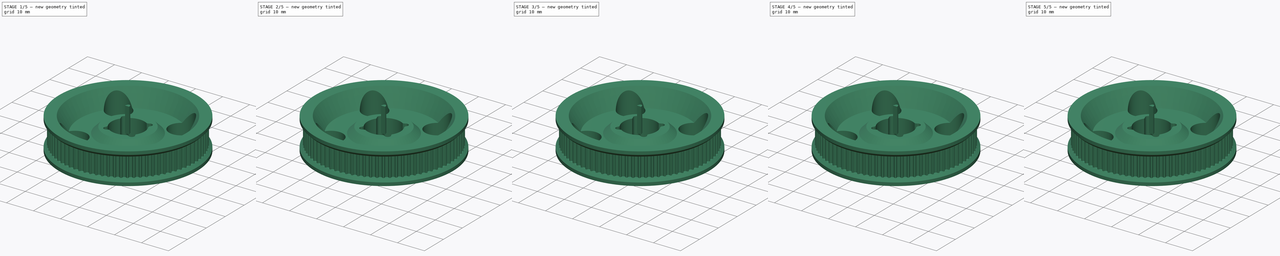
[diagram: build sequence overview — one tinted view per stage of 5, left to right]
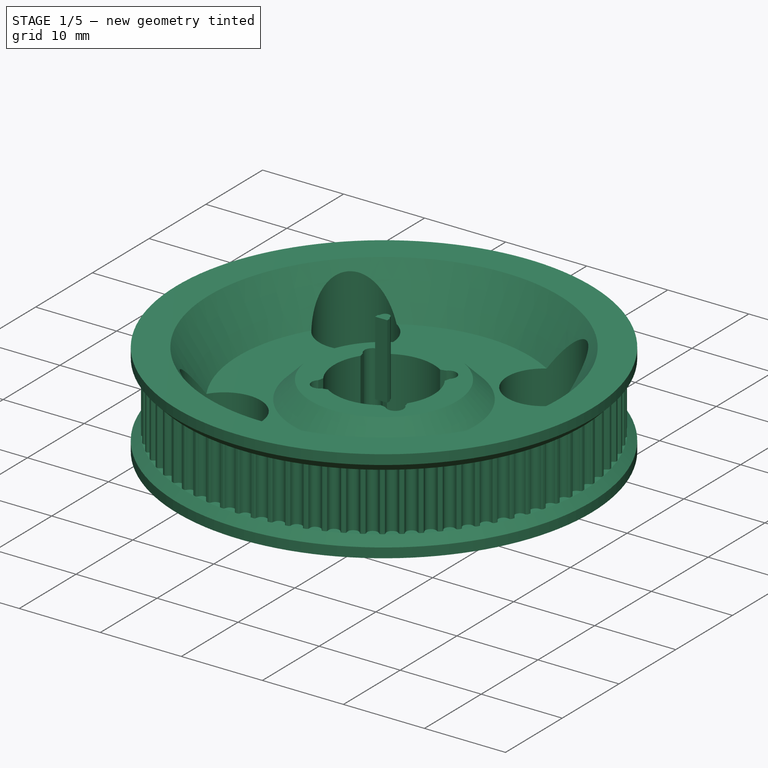
[diagram: stage 1 of 5 — iso view after this stage's code; geometry added in this stage tinted green]
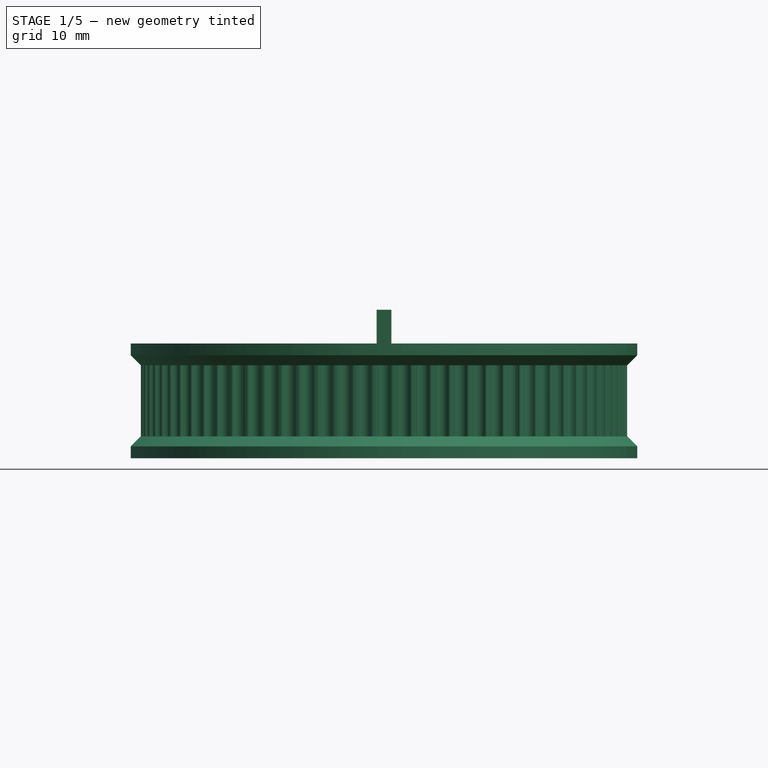
[diagram: stage 1 of 5 — front view after this stage's code; geometry added in this stage tinted green]
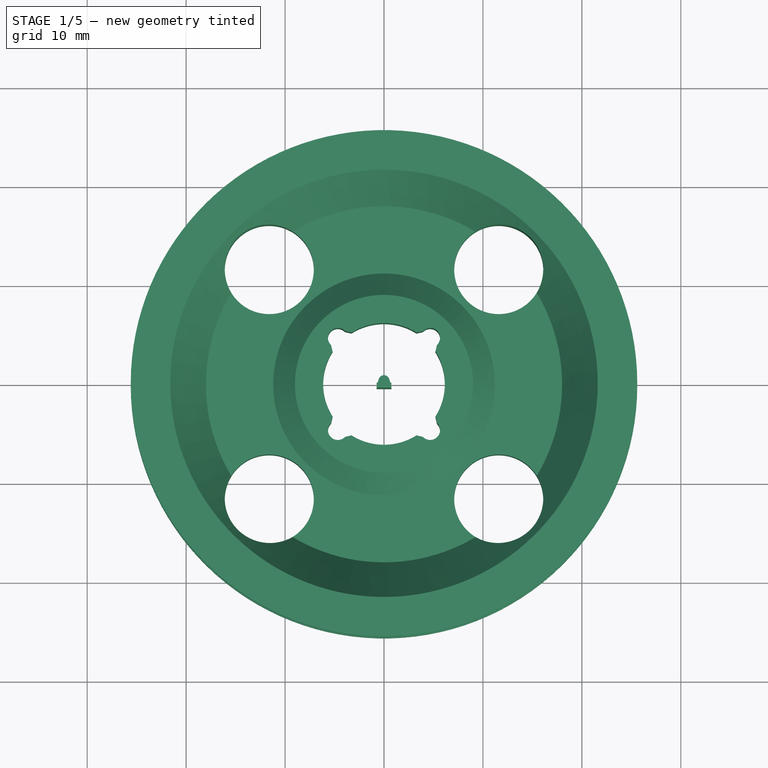
[diagram: stage 1 of 5 — top view after this stage's code; geometry added in this stage tinted green]
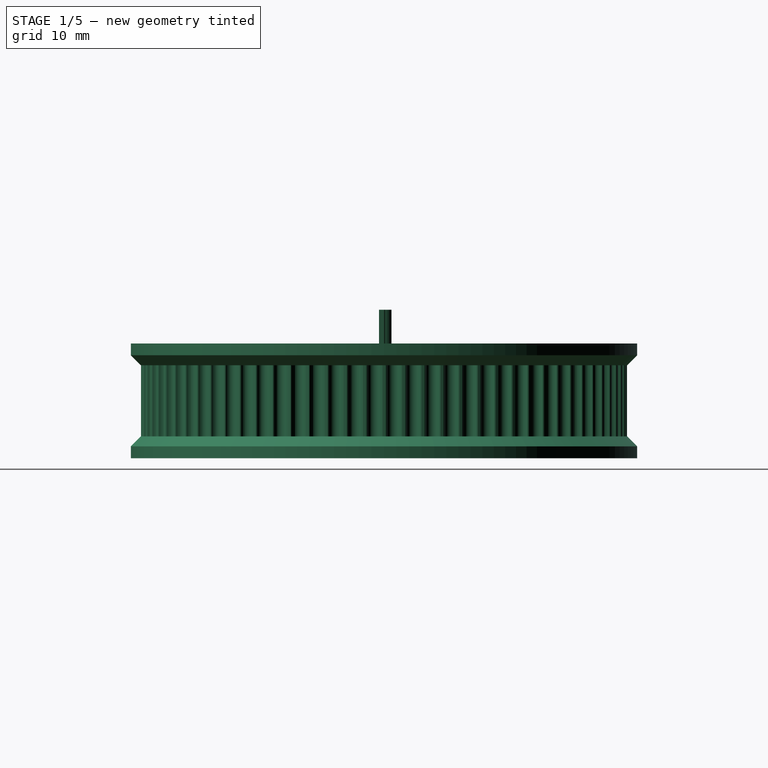
[diagram: stage 1 of 5 — right view after this stage's code; geometry added in this stage tinted green]
FCSTD DOCUMENT  (FreeCAD 1.0R39319 (Git))
Label: 78t_pulley_v0.1
License: All rights reserved
LicenseURL: https://en.wikipedia.org/wiki/All_rights_reserved
objects: Part::Feature×156, Part::FeaturePython×78, Part::Extrusion×78, Sketcher::SketchObject×6, PartDesign::Pad×4, PartDesign::Chamfer×3, PartDesign::Pocket×3, Part::Cylinder×2, Part::Cut×2, Part::MultiFuse×1, PartDesign::SubShapeBinder×1, App::DocumentObjectGroup×1, PartDesign::Groove×1, PartDesign::PolarPattern×1, PartDesign::Body×1, App::Part×1
note: 366 computed .brp shape members not serialized (recipe doc carries the construction recipe); baked Part::Feature solids carry a one-line shape summary decoded from their .brp

FEATURE [Part::Cylinder] cylinder
  Angle = 360
  AttacherType = Attacher::AttachEngine3D
  FirstAngle = 0
  Height = 7.2
  Placement = pos=(0,0,0.6) rot=(0,0,1;0.020138rad)
  Radius = 24.5742
  SecondAngle = 0
FEATURE [Part::Feature] Matrix_Deformation075
  Placement = pos=(-3.93963,-24.2416,-0.4) rot=(0,0,-1;0.161107rad)
  shape: bbox 1.875 x 1.52 x 9.2 mm, 25 faces (baked)
FEATURE [Part::Feature] polygon076
  shape: bbox 1.494 x 1.264 x 2e-07 mm, 1 faces, 0 solids (baked)
FEATURE [Part::FeaturePython] RefineLinearExtrude076  # WARN: FeaturePython — macro-defined, semantics opaque (R4)
  Base = -> polygon076
FEATURE [Part::Extrusion] LinearExtrude076
  Base = -> RefineLinearExtrude076
  Dir = (0,0,9.2)
  DirMode = 0
  FaceMakerClass = Part::FaceMakerBullseye
  FaceMakerMode = 3
  LengthFwd = 0
  LengthRev = 0
  Solid = false
  Symmetric = false
FEATURE [Part::Feature] Matrix_Deformation076
  Placement = pos=(-1.97623,-24.48,-0.4) rot=(0,0,-1;0.080554rad)
  shape: bbox 1.791 x 1.397 x 9.2 mm, 25 faces (baked)
FEATURE [Part::Feature] polygon077
  shape: bbox 1.494 x 1.264 x 2e-07 mm, 1 faces, 0 solids (baked)
FEATURE [Part::FeaturePython] RefineLinearExtrude077  # WARN: FeaturePython — macro-defined, semantics opaque (R4)
  Base = -> polygon077
FEATURE [Part::Extrusion] LinearExtrude077
  Base = -> RefineLinearExtrude077
  Dir = (0,0,9.2)
  DirMode = 0
  FaceMakerClass = Part::FaceMakerBullseye
  FaceMakerMode = 3
  LengthFwd = 0
  LengthRev = 0
  Solid = false
  Symmetric = false
FEATURE [Part::Feature] Matrix_Deformation077
  Placement = pos=(0,-24.5596,-0.4) rot=(0,0,1;0rad)
  shape: bbox 1.694 x 1.264 x 9.2 mm, 25 faces (baked)
FEATURE [Part::MultiFuse] Group
  Refine = true
  Shapes = -> [Matrix_Deformation,Matrix_Deformation001,Matrix_Deformation002,Matrix_Deformation003,Matrix_Deformation004,Matrix_Deformation005,Matrix_Deformation006,Matrix_Deformation007,Matrix_Deformation008,Matrix_Deformation009,Matrix_Deformation010,Matrix_Deformation011,Matrix_Deformation012,Matrix_Deformation013,Matrix_Deformation014,Matrix_Deformation015,Matrix_Deformation016,Matrix_Deformation017,+60 more]
FEATURE [Part::Cut] difference
  Base = -> cylinder
  Refine = true
  Tool = -> Group
FEATURE [Part::Cylinder] cylinder001
  Angle = 360
  AttacherType = Attacher::AttachEngine3D
  FirstAngle = 0
  Height = 10.4
  Placement = pos=(0,0,-1) rot=(0,0,1;0rad)
  Radius = 2.5
  SecondAngle = 0
FEATURE [Part::Cut] difference001
  Base = -> difference
  Refine = true
  Tool = -> cylinder001
FEATURE [PartDesign::SubShapeBinder] Binder
  BindCopyOnChange = 0
  BindMode = 0
  ClaimChildren = false
  Context = -> Body [Binder.]
  Fuse = false
  MakeFace = true
  OffsetFill = false
  OffsetIntersection = false
  OffsetJoinType = 0
  OffsetOpenResult = false
  PartialLoad = false
  Placement = pos=(0,0,-7.8) rot=(0,0,1;0rad)
  Refine = true
  Relative = true
  Support = -> [difference001[Face4]]
  _Version = 2
FEATURE [App::DocumentObjectGroup] Group001  label="GeneratedBaseObject"
  Group = -> [polygon,LinearExtrude,polygon001,LinearExtrude001,polygon002,LinearExtrude002,polygon003,LinearExtrude003,polygon004,LinearExtrude004,polygon005,LinearExtrude005,polygon006,LinearExtrude006,polygon007,LinearExtrude007,polygon008,LinearExtrude008,polygon009,LinearExtrude009,polygon010,LinearExtrude010,polygon011,LinearExtrude011,polygon012,LinearExtrude012,polygon013,LinearExtrude013,polygon014,+128 more]
FEATURE [Sketcher::SketchObject] Sketch
  ArcFitTolerance = 1e-06
  AttachmentSupport = -> [XY_Plane]
  FullyConstrained = true
  MakeInternals = false
  MapMode = 5
  sketch-geometry (1):
    g0: Circle CenterX=0 CenterY=0 CenterZ=0 NormalX=0 NormalY=0 NormalZ=1 AngleXU=0 Radius=25.6
  constraints (2):
    c: Coincident(g0,g-1)
    c: Diameter(g0) = 51.2
FEATURE [Sketcher::SketchObject] Sketch001
  ArcFitTolerance = 1e-06
  AttachmentSupport = -> [XY_Plane]
  FullyConstrained = true
  MakeInternals = false
  MapMode = 5
  sketch-geometry (1):
    g0: Circle CenterX=0 CenterY=0 CenterZ=0 NormalX=0 NormalY=0 NormalZ=1 AngleXU=0 Radius=22
  constraints (2):
    c: Diameter(g0) = 44
    c: Coincident(g0,g-1)
FEATURE [PartDesign::Pad] Pad003  label="BaseSpindle"
  Direction = (0,0,1)
  Length = 7.4
  Length2 = 10
  Midplane = true
  Profile = -> Sketch001
  ReferenceAxis = -> Sketch001 [N_Axis]
  Refine = true
  Suppressed = false
  Type = 0
FEATURE [PartDesign::Pad] Pad001  label="TopRetainer"
  BaseFeature = -> Pad003
  Direction = (0,0,1)
  Length = 5.8
  Length2 = -3.6
  Profile = -> Sketch
  ReferenceAxis = -> Sketch [N_Axis]
  Refine = true
  Suppressed = false
  Type = 4
FEATURE [PartDesign::Pad] Pad002  label="BottomRetainer"
  BaseFeature = -> Pad001
  Direction = (0,0,1)
  Length = 5.8
  Length2 = -3.6
  Profile = -> Sketch
  ReferenceAxis = -> Sketch [N_Axis]
  Refine = true
  Reversed = true
  Suppressed = false
  Type = 4
FEATURE [PartDesign::Chamfer] Chamfer  label="RetainerChamfer"
  Angle = 45
  Base = -> Pad002 [Edge5,Edge4]
  BaseFeature = -> Pad002
  ChamferType = 0
  FlipDirection = false
  Refine = true
  Size = 1
  Size2 = 1
  SupportTransform = false
  Suppressed = false
  UseAllEdges = false
FEATURE [PartDesign::Pad] Pad  label="78tExtrusion"
  BaseFeature = -> Chamfer
  Direction = (0,0,1)
  Length = 7.4
  Length2 = 10
  Midplane = true
  Profile = -> Binder
  Refine = true
  Suppressed = false
  Type = 0
FEATURE [Sketcher::SketchObject] Sketch002
  ArcFitTolerance = 1e-06
  AttachmentSupport = -> [Chamfer]
  FullyConstrained = true
  MakeInternals = false
  MapMode = 5
  Placement = pos=(0,0,5.8) rot=(0,0,1;0rad)
  sketch-geometry (1):
    g0: Circle CenterX=0 CenterY=0 CenterZ=0 NormalX=0 NormalY=0 NormalZ=1 AngleXU=0 Radius=6.15
  constraints (2):
    c: Coincident(g0,g-1)
    c: Diameter(g0) = 12.3
FEATURE [PartDesign::Pocket] Pocket
  BaseFeature = -> Pad
  Direction = (0,0,-1)
  Length = 20
  Length2 = 5
  Profile = -> Sketch002
  ReferenceAxis = -> Sketch002 [N_Axis]
  Refine = true
  Suppressed = false
  Type = 0
FEATURE [Sketcher::SketchObject] Sketch003
  ArcFitTolerance = 1e-06
  AttachmentSupport = -> [Pocket]
  FullyConstrained = true
  MakeInternals = false
  MapMode = 5
  Placement = pos=(0,0,5.8) rot=(0,0,1;0rad)
  sketch-geometry (9):
    g0: Circle [constr] CenterX=0 CenterY=0 CenterZ=0 NormalX=0 NormalY=0 NormalZ=1 AngleXU=0 Radius=6.6
    g1: Circle CenterX=-4.6669 CenterY=4.6669 CenterZ=0 NormalX=0 NormalY=0 NormalZ=1 AngleXU=0 Radius=1
    g2: Circle CenterX=4.6669 CenterY=4.6669 CenterZ=0 NormalX=0 NormalY=0 NormalZ=1 AngleXU=0 Radius=1
    g3: Circle CenterX=-4.6669 CenterY=-4.6669 CenterZ=0 NormalX=0 NormalY=0 NormalZ=1 AngleXU=0 Radius=1
    g4: Circle CenterX=4.6669 CenterY=-4.6669 CenterZ=0 NormalX=0 NormalY=0 NormalZ=1 AngleXU=0 Radius=1
    g5: LineSegment [constr] StartX=-4.6669 StartY=4.6669 StartZ=0 EndX=4.6669 EndY=4.6669 EndZ=0
    g6: LineSegment [constr] StartX=4.6669 StartY=4.6669 StartZ=0 EndX=4.6669 EndY=-4.6669 EndZ=0
    g7: LineSegment [constr] StartX=4.6669 StartY=-4.6669 StartZ=0 EndX=-4.6669 EndY=-4.6669 EndZ=0
    g8: LineSegment [constr] StartX=-4.6669 StartY=-4.6669 StartZ=0 EndX=-4.6669 EndY=4.6669 EndZ=0
  constraints (22):
    c: Coincident(g0,g-1)
    c: PointOnObject(g1,g0)
    c: PointOnObject(g2,g0)
    c: PointOnObject(g3,g0)
    c: PointOnObject(g4,g0)
    c: Coincident(g5,g1)
    c: Coincident(g5,g2)
    c: Coincident(g6,g2)
    c: Coincident(g6,g4)
    c: Vertical(g6)
    c: Coincident(g7,g4)
    c: Coincident(g7,g3)
    c: Coincident(g8,g3)
    c: Coincident(g8,g1)
    c: Vertical(g8)
    c: Horizontal(g5)
    c: Diameter(g2) = 2
    c: Equal(g2,g1)
    c: Equal(g2,g4)
    c: Equal(g2,g3)
    c: Diameter(g0) = 13.2
    c: Equal(g7,g6)
FEATURE [PartDesign::Pocket] Pocket001
  BaseFeature = -> Pocket
  Direction = (0,0,-1)
  Length = 20
  Length2 = 5
  Profile = -> Sketch003
  ReferenceAxis = -> Sketch003 [N_Axis]
  Refine = true
  Suppressed = false
  Type = 0
FEATURE [Sketcher::SketchObject] Sketch004
  ArcFitTolerance = 1e-06
  AttachmentSupport = -> [XZ_Plane]
  ExternalGeometry = -> [Pocket001]
  FullyConstrained = true
  MakeInternals = false
  MapMode = 5
  Placement = pos=(0,0,0) rot=(1,0,0;1.5708rad)
  sketch-geometry (7):
    g0: LineSegment [constr] StartX=0 StartY=2.2 StartZ=0 EndX=0 EndY=-5.8 EndZ=0
    g1: LineSegment StartX=-18 StartY=4e-16 StartZ=0 EndX=-21.6 EndY=5.8 EndZ=0
    g2: LineSegment StartX=-21.6 StartY=5.8 StartZ=0 EndX=0 EndY=5.8 EndZ=0
    g3: LineSegment StartX=0 StartY=5.8 StartZ=0 EndX=0 EndY=2.2 EndZ=0
    g4: LineSegment StartX=0 StartY=2.2 StartZ=0 EndX=-9 EndY=2.2 EndZ=0
    g5: LineSegment StartX=-18 StartY=4e-16 StartZ=0 EndX=-11.2 EndY=4e-16 EndZ=0
    g6: LineSegment StartX=-11.2 StartY=4e-16 StartZ=0 EndX=-9 EndY=2.2 EndZ=0
  constraints (19):
    c: PointOnObject(g0,g-2)
    c: Symmetric(g-3,g-3,g0)
    c: Coincident(g2,g1)
    c: Horizontal(g2)
    c: Coincident(g3,g2)
    c: Coincident(g3,g0)
    c: DistanceX(g1,g0) = 18
    c: Coincident(g4,g0)
    c: Horizontal(g4)
    c: DistanceX(g4,g4) = 9
    c: Coincident(g5,g1)
    c: Horizontal(g5)
    c: Coincident(g6,g5)
    c: Coincident(g6,g4)
    c: Angle(g6,g5) = 2.35619
    c: DistanceY(g0,g0) = 8
    c: DistanceY(g5,g4) = 2.2
    c: Symmetric(g-4,g-4,g2)
    c: DistanceX(g-5,g1) = 4
FEATURE [PartDesign::Groove] Groove
  Angle = 360
  Angle2 = 60
  Axis = (0,2e-16,1)
  Base = (0,0,0)
  BaseFeature = -> Pocket001
  Profile = -> Sketch004
  ReferenceAxis = -> Sketch004 [V_Axis]
  Refine = true
  Reversed = true
  Suppressed = false
  Type = 0
FEATURE [Sketcher::SketchObject] Sketch005
  ArcFitTolerance = 1e-06
  AttachmentSupport = -> [Groove]
  ExternalGeometry = -> [Groove]
  FullyConstrained = true
  MakeInternals = false
  MapMode = 5
  Placement = pos=(0,0,4e-16) rot=(0,0,1;0rad)
  sketch-geometry (3):
    g0: Circle [constr] CenterX=-11.5966 CenterY=-11.5966 CenterZ=0 NormalX=0 NormalY=0 NormalZ=1 AngleXU=0 Radius=5.2
    g1: LineSegment [constr] StartX=0 StartY=0 StartZ=0 EndX=-11.5966 EndY=-11.5966 EndZ=0
    g2: Circle CenterX=-11.5966 CenterY=-11.5966 CenterZ=0 NormalX=0 NormalY=0 NormalZ=1 AngleXU=0 Radius=4.5
  constraints (7):
    c: Tangent(g0,g-4)
    c: Tangent(g0,g-3)
    c: Coincident(g1,g-1)
    c: Coincident(g1,g0)
    c: Angle(g1,g-2) = 0.785398
    c: Coincident(g2,g0)
    c: Diameter(g2) = 9
FEATURE [PartDesign::Pocket] Pocket002
  BaseFeature = -> Groove
  Direction = (0,0,-1)
  Length = 12
  Length2 = 5
  Midplane = true
  Profile = -> Sketch005
  ReferenceAxis = -> Sketch005 [N_Axis]
  Refine = true
  Suppressed = false
  Type = 0
FEATURE [PartDesign::PolarPattern] PolarPattern
  Angle = 360
  Axis = -> Sketch005 [N_Axis]
  BaseFeature = -> Pocket002
  Mode = 0
  Occurrences = 4
  Offset = 120
  Originals = -> [Pocket002]
  Refine = true
  Suppressed = false
  TransformMode = 0
FEATURE [PartDesign::Chamfer] Chamfer001
  Angle = 45
  Base = -> PolarPattern [Edge4959,Edge4964,Edge4955,Edge4962,Edge4958,Edge4954,Edge4952,Edge4950]
  BaseFeature = -> PolarPattern
  ChamferType = 0
  FlipDirection = false
  Refine = true
  Size = 0.5
  Size2 = 1
  SupportTransform = false
  Suppressed = false
  UseAllEdges = false
FEATURE [PartDesign::Chamfer] Chamfer002
  Angle = 45
  Base = -> Chamfer001 [Edge10,Edge18,Edge13,Edge1,Edge3]
  BaseFeature = -> Chamfer001
  ChamferType = 0
  FlipDirection = false
  Refine = true
  Size = 1
  Size2 = 1
  SupportTransform = false
  Suppressed = false
  UseAllEdges = false
FEATURE [PartDesign::Body] Body
  AllowCompound = false
  Group = -> [Pad003,Binder,Sketch,Pad001,Pad002,Sketch001,Chamfer,Pad,Sketch002,Pocket,Sketch003,Pocket001,Sketch004,Groove,Sketch005,Pocket002,PolarPattern,Chamfer001,Chamfer002]
  Origin = -> Origin
  Tip = -> Chamfer002
FEATURE [App::Part] Part  label="78t_pulley"
  Group = -> [Body]
  Origin = -> Origin001
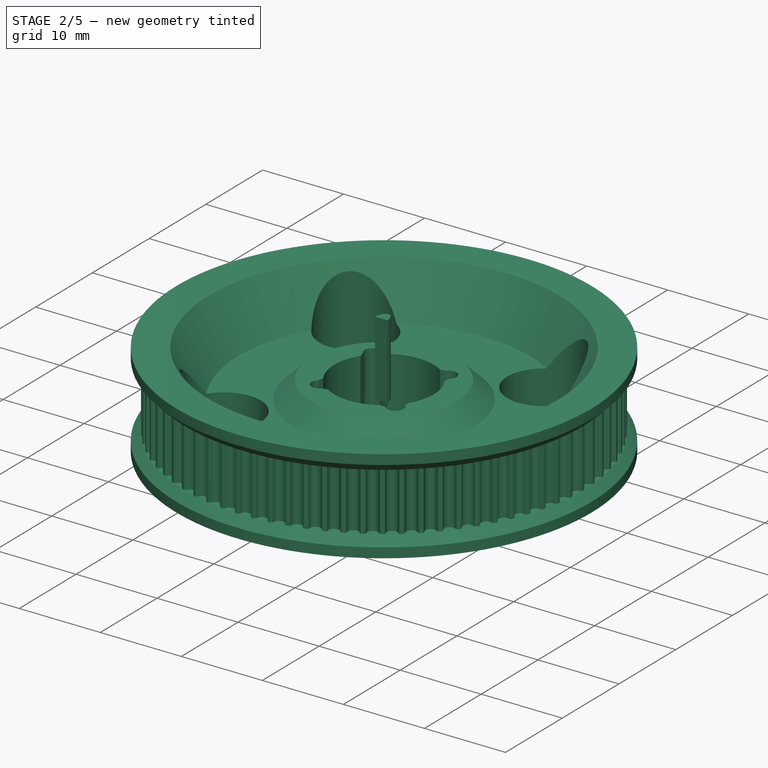
[diagram: stage 2 of 5 — iso view after this stage's code; geometry added in this stage tinted green]
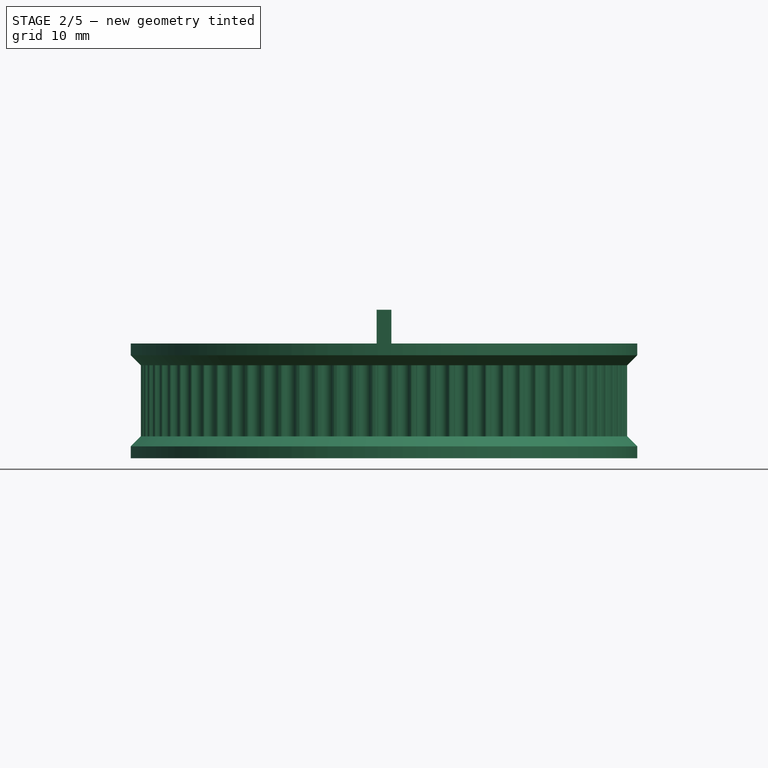
[diagram: stage 2 of 5 — front view after this stage's code; geometry added in this stage tinted green]
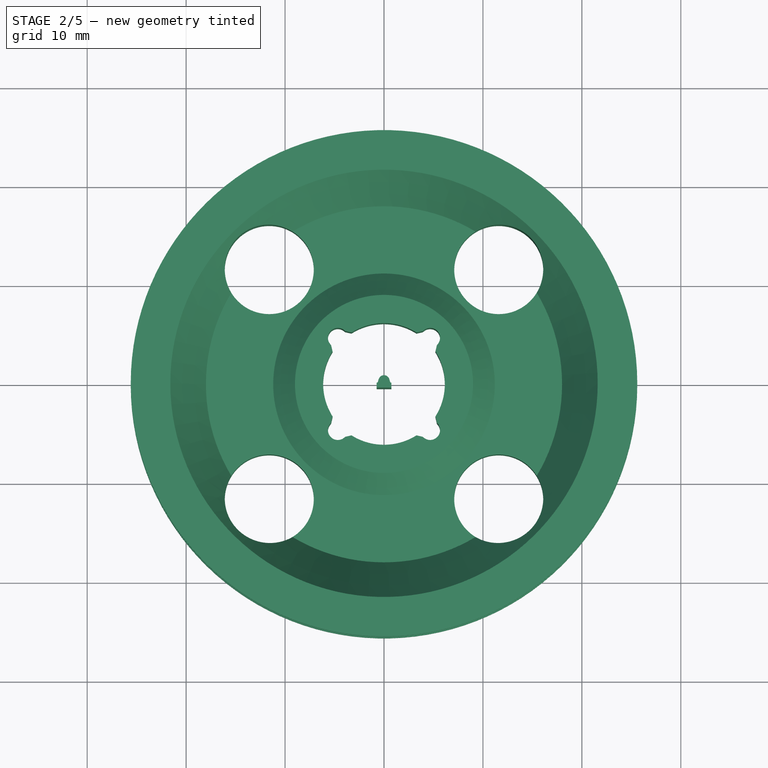
[diagram: stage 2 of 5 — top view after this stage's code; geometry added in this stage tinted green]
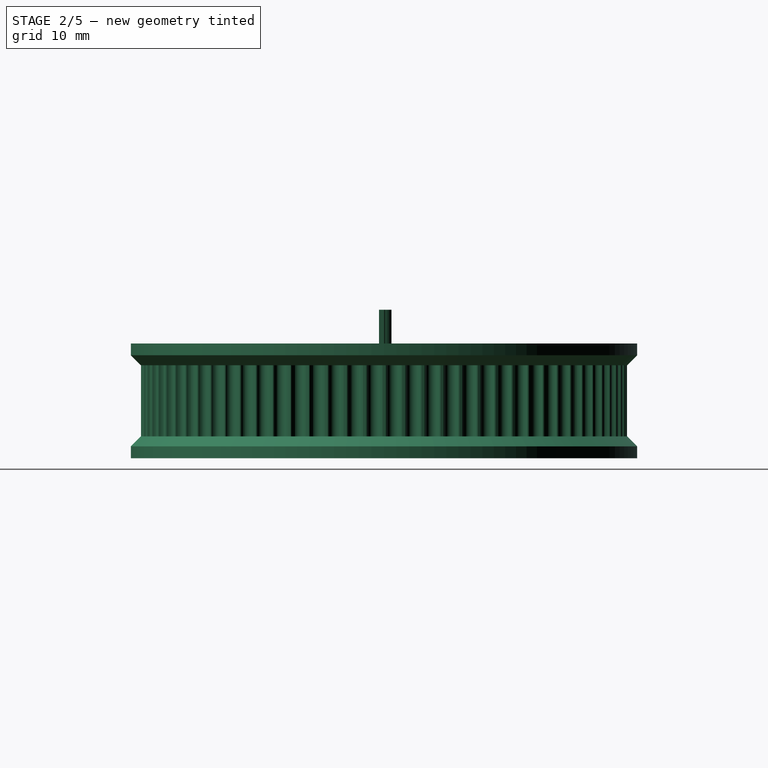
[diagram: stage 2 of 5 — right view after this stage's code; geometry added in this stage tinted green]
FEATURE [Part::Feature] Matrix_Deformation056
  Placement = pos=(-24.3805,2.96034,-0.4) rot=(0,0,-1;1.69163rad)
  shape: bbox 1.459 x 1.834 x 9.2 mm, 25 faces (baked)
FEATURE [Part::Feature] polygon057
  shape: bbox 1.494 x 1.264 x 2e-07 mm, 1 faces, 0 solids (baked)
FEATURE [Part::FeaturePython] RefineLinearExtrude057  # WARN: FeaturePython — macro-defined, semantics opaque (R4)
  Base = -> polygon057
FEATURE [Part::Extrusion] LinearExtrude057
  Base = -> RefineLinearExtrude057
  Dir = (0,0,9.2)
  DirMode = 0
  FaceMakerClass = Part::FaceMakerBullseye
  FaceMakerMode = 3
  LengthFwd = 0
  LengthRev = 0
  Solid = false
  Symmetric = false
FEATURE [Part::Feature] Matrix_Deformation057
  Placement = pos=(-24.5397,0.988914,-0.4) rot=(0,0,-1;1.61107rad)
  shape: bbox 1.332 x 1.744 x 9.2 mm, 25 faces (baked)
FEATURE [Part::Feature] polygon058
  shape: bbox 1.494 x 1.264 x 2e-07 mm, 1 faces, 0 solids (baked)
FEATURE [Part::FeaturePython] RefineLinearExtrude058  # WARN: FeaturePython — macro-defined, semantics opaque (R4)
  Base = -> polygon058
FEATURE [Part::Extrusion] LinearExtrude058
  Base = -> RefineLinearExtrude058
  Dir = (0,0,9.2)
  DirMode = 0
  FaceMakerClass = Part::FaceMakerBullseye
  FaceMakerMode = 3
  LengthFwd = 0
  LengthRev = 0
  Solid = false
  Symmetric = false
FEATURE [Part::Feature] Matrix_Deformation058
  Placement = pos=(-24.5397,-0.988914,-0.4) rot=(0,0,-1;1.53052rad)
  shape: bbox 1.332 x 1.744 x 9.2 mm, 25 faces (baked)
FEATURE [Part::Feature] polygon059
  shape: bbox 1.494 x 1.264 x 2e-07 mm, 1 faces, 0 solids (baked)
FEATURE [Part::FeaturePython] RefineLinearExtrude059  # WARN: FeaturePython — macro-defined, semantics opaque (R4)
  Base = -> polygon059
FEATURE [Part::Extrusion] LinearExtrude059
  Base = -> RefineLinearExtrude059
  Dir = (0,0,9.2)
  DirMode = 0
  FaceMakerClass = Part::FaceMakerBullseye
  FaceMakerMode = 3
  LengthFwd = 0
  LengthRev = 0
  Solid = false
  Symmetric = false
FEATURE [Part::Feature] Matrix_Deformation059
  Placement = pos=(-24.3805,-2.96034,-0.4) rot=(0,0,-1;1.44997rad)
  shape: bbox 1.459 x 1.834 x 9.2 mm, 25 faces (baked)
FEATURE [Part::Feature] polygon060
  shape: bbox 1.494 x 1.264 x 2e-07 mm, 1 faces, 0 solids (baked)
FEATURE [Part::FeaturePython] RefineLinearExtrude060  # WARN: FeaturePython — macro-defined, semantics opaque (R4)
  Base = -> polygon060
FEATURE [Part::Extrusion] LinearExtrude060
  Base = -> RefineLinearExtrude060
  Dir = (0,0,9.2)
  DirMode = 0
  FaceMakerClass = Part::FaceMakerBullseye
  FaceMakerMode = 3
  LengthFwd = 0
  LengthRev = 0
  Solid = false
  Symmetric = false
FEATURE [Part::Feature] Matrix_Deformation060
  Placement = pos=(-24.0633,-4.91256,-0.4) rot=(0,0,-1;1.36941rad)
  shape: bbox 1.578 x 1.913 x 9.2 mm, 25 faces (baked)
FEATURE [Part::Feature] polygon061
  shape: bbox 1.494 x 1.264 x 2e-07 mm, 1 faces, 0 solids (baked)
FEATURE [Part::FeaturePython] RefineLinearExtrude061  # WARN: FeaturePython — macro-defined, semantics opaque (R4)
  Base = -> polygon061
FEATURE [Part::Extrusion] LinearExtrude061
  Base = -> RefineLinearExtrude061
  Dir = (0,0,9.2)
  DirMode = 0
  FaceMakerClass = Part::FaceMakerBullseye
  FaceMakerMode = 3
  LengthFwd = 0
  LengthRev = 0
  Solid = false
  Symmetric = false
FEATURE [Part::Feature] Matrix_Deformation061
  Placement = pos=(-23.5899,-6.8329,-0.4) rot=(0,0,-1;1.28886rad)
  shape: bbox 1.686 x 1.979 x 9.2 mm, 25 faces (baked)
FEATURE [Part::Feature] polygon062
  shape: bbox 1.494 x 1.264 x 2e-07 mm, 1 faces, 0 solids (baked)
FEATURE [Part::FeaturePython] RefineLinearExtrude062  # WARN: FeaturePython — macro-defined, semantics opaque (R4)
  Base = -> polygon062
FEATURE [Part::Extrusion] LinearExtrude062
  Base = -> RefineLinearExtrude062
  Dir = (0,0,9.2)
  DirMode = 0
  FaceMakerClass = Part::FaceMakerBullseye
  FaceMakerMode = 3
  LengthFwd = 0
  LengthRev = 0
  Solid = false
  Symmetric = false
FEATURE [Part::Feature] Matrix_Deformation062
  Placement = pos=(-22.9636,-8.70896,-0.4) rot=(0,0,-1;1.2083rad)
  shape: bbox 1.783 x 2.033 x 9.2 mm, 25 faces (baked)
FEATURE [Part::Feature] polygon063
  shape: bbox 1.494 x 1.264 x 2e-07 mm, 1 faces, 0 solids (baked)
FEATURE [Part::FeaturePython] RefineLinearExtrude063  # WARN: FeaturePython — macro-defined, semantics opaque (R4)
  Base = -> polygon063
FEATURE [Part::Extrusion] LinearExtrude063
  Base = -> RefineLinearExtrude063
  Dir = (0,0,9.2)
  DirMode = 0
  FaceMakerClass = Part::FaceMakerBullseye
  FaceMakerMode = 3
  LengthFwd = 0
  LengthRev = 0
  Solid = false
  Symmetric = false
FEATURE [Part::Feature] Matrix_Deformation063
  Placement = pos=(-22.1884,-10.5285,-0.4) rot=(0,0,-1;1.12775rad)
  shape: bbox 1.869 x 2.073 x 9.2 mm, 25 faces (baked)
FEATURE [Part::Feature] polygon064
  shape: bbox 1.494 x 1.264 x 2e-07 mm, 1 faces, 0 solids (baked)
FEATURE [Part::FeaturePython] RefineLinearExtrude064  # WARN: FeaturePython — macro-defined, semantics opaque (R4)
  Base = -> polygon064
FEATURE [Part::Extrusion] LinearExtrude064
  Base = -> RefineLinearExtrude064
  Dir = (0,0,9.2)
  DirMode = 0
  FaceMakerClass = Part::FaceMakerBullseye
  FaceMakerMode = 3
  LengthFwd = 0
  LengthRev = 0
  Solid = false
  Symmetric = false
FEATURE [Part::Feature] Matrix_Deformation064
  Placement = pos=(-21.2692,-12.2798,-0.4) rot=(0,0,-1;1.0472rad)
  shape: bbox 1.942 x 2.1 x 9.2 mm, 25 faces (baked)
FEATURE [Part::Feature] polygon065
  shape: bbox 1.494 x 1.264 x 2e-07 mm, 1 faces, 0 solids (baked)
FEATURE [Part::FeaturePython] RefineLinearExtrude065  # WARN: FeaturePython — macro-defined, semantics opaque (R4)
  Base = -> polygon065
FEATURE [Part::Extrusion] LinearExtrude065
  Base = -> RefineLinearExtrude065
  Dir = (0,0,9.2)
  DirMode = 0
  FaceMakerClass = Part::FaceMakerBullseye
  FaceMakerMode = 3
  LengthFwd = 0
  LengthRev = 0
  Solid = false
  Symmetric = false
FEATURE [Part::Feature] Matrix_Deformation065
  Placement = pos=(-20.2122,-13.9514,-0.4) rot=(0,0,-1;0.966644rad)
  shape: bbox 2.003 x 2.113 x 9.2 mm, 25 faces (baked)
FEATURE [Part::Feature] polygon066
  shape: bbox 1.494 x 1.264 x 2e-07 mm, 1 faces, 0 solids (baked)
FEATURE [Part::FeaturePython] RefineLinearExtrude066  # WARN: FeaturePython — macro-defined, semantics opaque (R4)
  Base = -> polygon066
FEATURE [Part::Extrusion] LinearExtrude066
  Base = -> RefineLinearExtrude066
  Dir = (0,0,9.2)
  DirMode = 0
  FaceMakerClass = Part::FaceMakerBullseye
  FaceMakerMode = 3
  LengthFwd = 0
  LengthRev = 0
  Solid = false
  Symmetric = false
FEATURE [Part::Feature] Matrix_Deformation066
  Placement = pos=(-19.024,-15.5326,-0.4) rot=(0,0,-1;0.886091rad)
  shape: bbox 2.051 x 2.112 x 9.2 mm, 25 faces (baked)
FEATURE [Part::Feature] polygon067
  shape: bbox 1.494 x 1.264 x 2e-07 mm, 1 faces, 0 solids (baked)
FEATURE [Part::FeaturePython] RefineLinearExtrude067  # WARN: FeaturePython — macro-defined, semantics opaque (R4)
  Base = -> polygon067
FEATURE [Part::Extrusion] LinearExtrude067
  Base = -> RefineLinearExtrude067
  Dir = (0,0,9.2)
  DirMode = 0
  FaceMakerClass = Part::FaceMakerBullseye
  FaceMakerMode = 3
  LengthFwd = 0
  LengthRev = 0
  Solid = false
  Symmetric = false
FEATURE [Part::Feature] Matrix_Deformation067
  Placement = pos=(-17.7124,-17.013,-0.4) rot=(0,0,-1;0.805537rad)
  shape: bbox 2.086 x 2.098 x 9.2 mm, 25 faces (baked)
FEATURE [Part::Feature] polygon068
  shape: bbox 1.494 x 1.264 x 2e-07 mm, 1 faces, 0 solids (baked)
FEATURE [Part::FeaturePython] RefineLinearExtrude068  # WARN: FeaturePython — macro-defined, semantics opaque (R4)
  Base = -> polygon068
FEATURE [Part::Extrusion] LinearExtrude068
  Base = -> RefineLinearExtrude068
  Dir = (0,0,9.2)
  DirMode = 0
  FaceMakerClass = Part::FaceMakerBullseye
  FaceMakerMode = 3
  LengthFwd = 0
  LengthRev = 0
  Solid = false
  Symmetric = false
FEATURE [Part::Feature] Matrix_Deformation068
  Placement = pos=(-16.286,-18.3831,-0.4) rot=(0,0,-1;0.724983rad)
  shape: bbox 2.107 x 2.07 x 9.2 mm, 25 faces (baked)
FEATURE [Part::Feature] polygon069
  shape: bbox 1.494 x 1.264 x 2e-07 mm, 1 faces, 0 solids (baked)
FEATURE [Part::FeaturePython] RefineLinearExtrude069  # WARN: FeaturePython — macro-defined, semantics opaque (R4)
  Base = -> polygon069
FEATURE [Part::Extrusion] LinearExtrude069
  Base = -> RefineLinearExtrude069
  Dir = (0,0,9.2)
  DirMode = 0
  FaceMakerClass = Part::FaceMakerBullseye
  FaceMakerMode = 3
  LengthFwd = 0
  LengthRev = 0
  Solid = false
  Symmetric = false
FEATURE [Part::Feature] Matrix_Deformation069
  Placement = pos=(-14.754,-19.634,-0.4) rot=(0,0,-1;0.644429rad)
  shape: bbox 2.114 x 2.029 x 9.2 mm, 25 faces (baked)
FEATURE [Part::Feature] polygon070
  shape: bbox 1.494 x 1.264 x 2e-07 mm, 1 faces, 0 solids (baked)
FEATURE [Part::FeaturePython] RefineLinearExtrude070  # WARN: FeaturePython — macro-defined, semantics opaque (R4)
  Base = -> polygon070
FEATURE [Part::Extrusion] LinearExtrude070
  Base = -> RefineLinearExtrude070
  Dir = (0,0,9.2)
  DirMode = 0
  FaceMakerClass = Part::FaceMakerBullseye
  FaceMakerMode = 3
  LengthFwd = 0
  LengthRev = 0
  Solid = false
  Symmetric = false
FEATURE [Part::Feature] Matrix_Deformation070
  Placement = pos=(-13.1263,-20.7575,-0.4) rot=(0,0,-1;0.563876rad)
  shape: bbox 2.108 x 1.974 x 9.2 mm, 25 faces (baked)
FEATURE [Part::Feature] polygon071
  shape: bbox 1.494 x 1.264 x 2e-07 mm, 1 faces, 0 solids (baked)
FEATURE [Part::FeaturePython] RefineLinearExtrude071  # WARN: FeaturePython — macro-defined, semantics opaque (R4)
  Base = -> polygon071
FEATURE [Part::Extrusion] LinearExtrude071
  Base = -> RefineLinearExtrude071
  Dir = (0,0,9.2)
  DirMode = 0
  FaceMakerClass = Part::FaceMakerBullseye
  FaceMakerMode = 3
  LengthFwd = 0
  LengthRev = 0
  Solid = false
  Symmetric = false
FEATURE [Part::Feature] Matrix_Deformation071
  Placement = pos=(-11.4134,-21.7464,-0.4) rot=(0,0,-1;0.483322rad)
  shape: bbox 2.088 x 1.907 x 9.2 mm, 25 faces (baked)
FEATURE [Part::Feature] polygon072
  shape: bbox 1.494 x 1.264 x 2e-07 mm, 1 faces, 0 solids (baked)
FEATURE [Part::FeaturePython] RefineLinearExtrude072  # WARN: FeaturePython — macro-defined, semantics opaque (R4)
  Base = -> polygon072
FEATURE [Part::Extrusion] LinearExtrude072
  Base = -> RefineLinearExtrude072
  Dir = (0,0,9.2)
  DirMode = 0
  FaceMakerClass = Part::FaceMakerBullseye
  FaceMakerMode = 3
  LengthFwd = 0
  LengthRev = 0
  Solid = false
  Symmetric = false
FEATURE [Part::Feature] Matrix_Deformation072
  Placement = pos=(-9.62656,-22.5943,-0.4) rot=(0,0,-1;0.402769rad)
  shape: bbox 2.054 x 1.827 x 9.2 mm, 25 faces (baked)
FEATURE [Part::Feature] polygon073
  shape: bbox 1.494 x 1.264 x 2e-07 mm, 1 faces, 0 solids (baked)
FEATURE [Part::FeaturePython] RefineLinearExtrude073  # WARN: FeaturePython — macro-defined, semantics opaque (R4)
  Base = -> polygon073
FEATURE [Part::Extrusion] LinearExtrude073
  Base = -> RefineLinearExtrude073
  Dir = (0,0,9.2)
  DirMode = 0
  FaceMakerClass = Part::FaceMakerBullseye
  FaceMakerMode = 3
  LengthFwd = 0
  LengthRev = 0
  Solid = false
  Symmetric = false
FEATURE [Part::Feature] Matrix_Deformation073
  Placement = pos=(-7.77724,-23.2957,-0.4) rot=(0,0,-1;0.322215rad)
  shape: bbox 2.008 x 1.736 x 9.2 mm, 25 faces (baked)
FEATURE [Part::Feature] polygon074
  shape: bbox 1.494 x 1.264 x 2e-07 mm, 1 faces, 0 solids (baked)
FEATURE [Part::FeaturePython] RefineLinearExtrude074  # WARN: FeaturePython — macro-defined, semantics opaque (R4)
  Base = -> polygon074
FEATURE [Part::Extrusion] LinearExtrude074
  Base = -> RefineLinearExtrude074
  Dir = (0,0,9.2)
  DirMode = 0
  FaceMakerClass = Part::FaceMakerBullseye
  FaceMakerMode = 3
  LengthFwd = 0
  LengthRev = 0
  Solid = false
  Symmetric = false
FEATURE [Part::Feature] Matrix_Deformation074
  Placement = pos=(-5.8775,-23.8459,-0.4) rot=(0,0,-1;0.241661rad)
  shape: bbox 1.948 x 1.633 x 9.2 mm, 25 faces (baked)
FEATURE [Part::Feature] polygon075
  shape: bbox 1.494 x 1.264 x 2e-07 mm, 1 faces, 0 solids (baked)
FEATURE [Part::FeaturePython] RefineLinearExtrude075  # WARN: FeaturePython — macro-defined, semantics opaque (R4)
  Base = -> polygon075
FEATURE [Part::Extrusion] LinearExtrude075
  Base = -> RefineLinearExtrude075
  Dir = (0,0,9.2)
  DirMode = 0
  FaceMakerClass = Part::FaceMakerBullseye
  FaceMakerMode = 3
  LengthFwd = 0
  LengthRev = 0
  Solid = false
  Symmetric = false
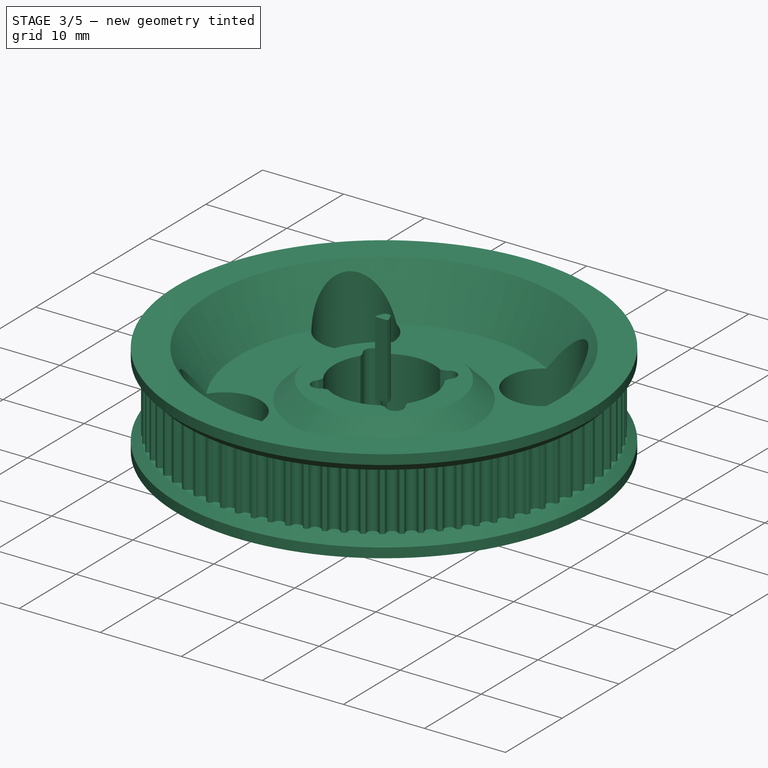
[diagram: stage 3 of 5 — iso view after this stage's code; geometry added in this stage tinted green]
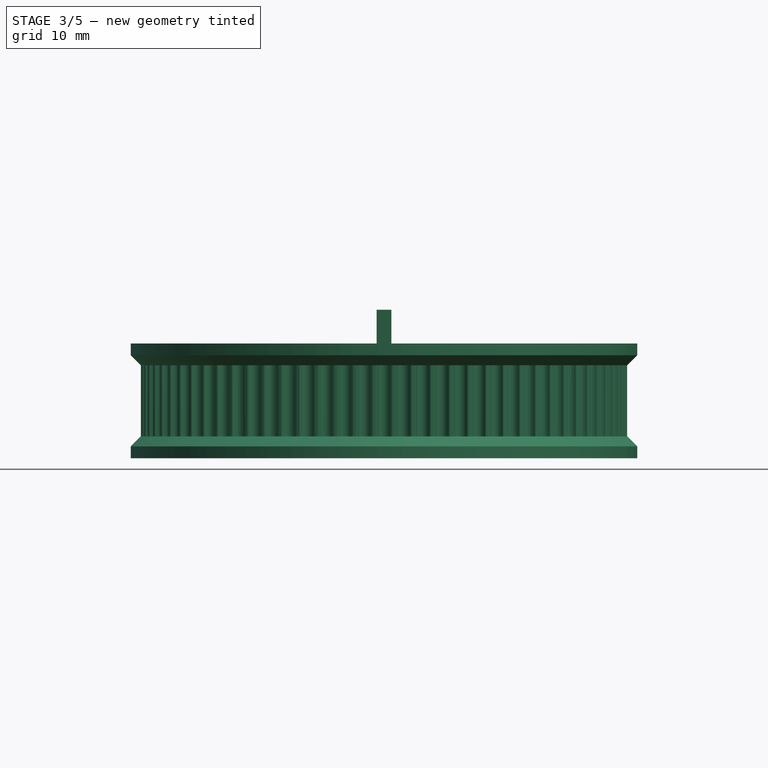
[diagram: stage 3 of 5 — front view after this stage's code; geometry added in this stage tinted green]
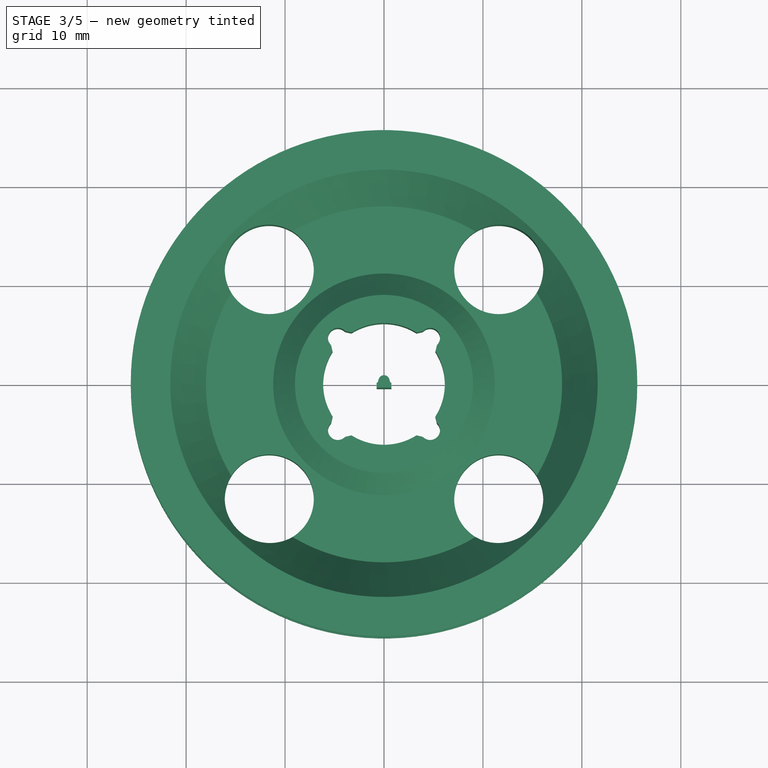
[diagram: stage 3 of 5 — top view after this stage's code; geometry added in this stage tinted green]
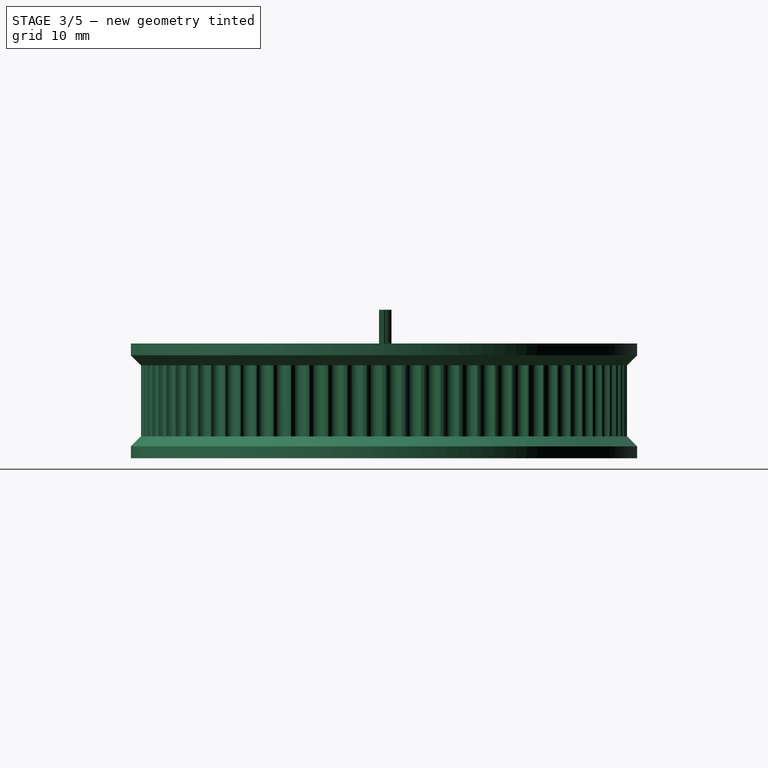
[diagram: stage 3 of 5 — right view after this stage's code; geometry added in this stage tinted green]
FEATURE [Part::Feature] Matrix_Deformation037
  Placement = pos=(1.97623,24.48,-0.4) rot=(0,0,1;3.06104rad)
  shape: bbox 1.791 x 1.397 x 9.2 mm, 25 faces (baked)
FEATURE [Part::Feature] polygon038
  shape: bbox 1.494 x 1.264 x 2e-07 mm, 1 faces, 0 solids (baked)
FEATURE [Part::FeaturePython] RefineLinearExtrude038  # WARN: FeaturePython — macro-defined, semantics opaque (R4)
  Base = -> polygon038
FEATURE [Part::Extrusion] LinearExtrude038
  Base = -> RefineLinearExtrude038
  Dir = (0,0,9.2)
  DirMode = 0
  FaceMakerClass = Part::FaceMakerBullseye
  FaceMakerMode = 3
  LengthFwd = 0
  LengthRev = 0
  Solid = false
  Symmetric = false
FEATURE [Part::Feature] Matrix_Deformation038
  Placement = pos=(3e-15,24.5596,-0.4) rot=(0,0,1;3.14159rad)
  shape: bbox 1.694 x 1.264 x 9.2 mm, 25 faces (baked)
FEATURE [Part::Feature] polygon039
  shape: bbox 1.494 x 1.264 x 2e-07 mm, 1 faces, 0 solids (baked)
FEATURE [Part::FeaturePython] RefineLinearExtrude039  # WARN: FeaturePython — macro-defined, semantics opaque (R4)
  Base = -> polygon039
FEATURE [Part::Extrusion] LinearExtrude039
  Base = -> RefineLinearExtrude039
  Dir = (0,0,9.2)
  DirMode = 0
  FaceMakerClass = Part::FaceMakerBullseye
  FaceMakerMode = 3
  LengthFwd = 0
  LengthRev = 0
  Solid = false
  Symmetric = false
FEATURE [Part::Feature] Matrix_Deformation039
  Placement = pos=(-1.97623,24.48,-0.4) rot=(0,0,1;3.22215rad)
  shape: bbox 1.791 x 1.397 x 9.2 mm, 25 faces (baked)
FEATURE [Part::Feature] polygon040
  shape: bbox 1.494 x 1.264 x 2e-07 mm, 1 faces, 0 solids (baked)
FEATURE [Part::FeaturePython] RefineLinearExtrude040  # WARN: FeaturePython — macro-defined, semantics opaque (R4)
  Base = -> polygon040
FEATURE [Part::Extrusion] LinearExtrude040
  Base = -> RefineLinearExtrude040
  Dir = (0,0,9.2)
  DirMode = 0
  FaceMakerClass = Part::FaceMakerBullseye
  FaceMakerMode = 3
  LengthFwd = 0
  LengthRev = 0
  Solid = false
  Symmetric = false
FEATURE [Part::Feature] Matrix_Deformation040
  Placement = pos=(-3.93963,24.2416,-0.4) rot=(0,0,1;3.3027rad)
  shape: bbox 1.875 x 1.52 x 9.2 mm, 25 faces (baked)
FEATURE [Part::Feature] polygon041
  shape: bbox 1.494 x 1.264 x 2e-07 mm, 1 faces, 0 solids (baked)
FEATURE [Part::FeaturePython] RefineLinearExtrude041  # WARN: FeaturePython — macro-defined, semantics opaque (R4)
  Base = -> polygon041
FEATURE [Part::Extrusion] LinearExtrude041
  Base = -> RefineLinearExtrude041
  Dir = (0,0,9.2)
  DirMode = 0
  FaceMakerClass = Part::FaceMakerBullseye
  FaceMakerMode = 3
  LengthFwd = 0
  LengthRev = 0
  Solid = false
  Symmetric = false
FEATURE [Part::Feature] Matrix_Deformation041
  Placement = pos=(-5.8775,23.8459,-0.4) rot=(0,0,1;3.38325rad)
  shape: bbox 1.948 x 1.633 x 9.2 mm, 25 faces (baked)
FEATURE [Part::Feature] polygon042
  shape: bbox 1.494 x 1.264 x 2e-07 mm, 1 faces, 0 solids (baked)
FEATURE [Part::FeaturePython] RefineLinearExtrude042  # WARN: FeaturePython — macro-defined, semantics opaque (R4)
  Base = -> polygon042
FEATURE [Part::Extrusion] LinearExtrude042
  Base = -> RefineLinearExtrude042
  Dir = (0,0,9.2)
  DirMode = 0
  FaceMakerClass = Part::FaceMakerBullseye
  FaceMakerMode = 3
  LengthFwd = 0
  LengthRev = 0
  Solid = false
  Symmetric = false
FEATURE [Part::Feature] Matrix_Deformation042
  Placement = pos=(-7.77724,23.2957,-0.4) rot=(0,0,1;3.46381rad)
  shape: bbox 2.008 x 1.736 x 9.2 mm, 25 faces (baked)
FEATURE [Part::Feature] polygon043
  shape: bbox 1.494 x 1.264 x 2e-07 mm, 1 faces, 0 solids (baked)
FEATURE [Part::FeaturePython] RefineLinearExtrude043  # WARN: FeaturePython — macro-defined, semantics opaque (R4)
  Base = -> polygon043
FEATURE [Part::Extrusion] LinearExtrude043
  Base = -> RefineLinearExtrude043
  Dir = (0,0,9.2)
  DirMode = 0
  FaceMakerClass = Part::FaceMakerBullseye
  FaceMakerMode = 3
  LengthFwd = 0
  LengthRev = 0
  Solid = false
  Symmetric = false
FEATURE [Part::Feature] Matrix_Deformation043
  Placement = pos=(-9.62656,22.5943,-0.4) rot=(0,0,1;3.54436rad)
  shape: bbox 2.054 x 1.827 x 9.2 mm, 25 faces (baked)
FEATURE [Part::Feature] polygon044
  shape: bbox 1.494 x 1.264 x 2e-07 mm, 1 faces, 0 solids (baked)
FEATURE [Part::FeaturePython] RefineLinearExtrude044  # WARN: FeaturePython — macro-defined, semantics opaque (R4)
  Base = -> polygon044
FEATURE [Part::Extrusion] LinearExtrude044
  Base = -> RefineLinearExtrude044
  Dir = (0,0,9.2)
  DirMode = 0
  FaceMakerClass = Part::FaceMakerBullseye
  FaceMakerMode = 3
  LengthFwd = 0
  LengthRev = 0
  Solid = false
  Symmetric = false
FEATURE [Part::Feature] Matrix_Deformation044
  Placement = pos=(-11.4134,21.7464,-0.4) rot=(0,0,1;3.62491rad)
  shape: bbox 2.088 x 1.907 x 9.2 mm, 25 faces (baked)
FEATURE [Part::Feature] polygon045
  shape: bbox 1.494 x 1.264 x 2e-07 mm, 1 faces, 0 solids (baked)
FEATURE [Part::FeaturePython] RefineLinearExtrude045  # WARN: FeaturePython — macro-defined, semantics opaque (R4)
  Base = -> polygon045
FEATURE [Part::Extrusion] LinearExtrude045
  Base = -> RefineLinearExtrude045
  Dir = (0,0,9.2)
  DirMode = 0
  FaceMakerClass = Part::FaceMakerBullseye
  FaceMakerMode = 3
  LengthFwd = 0
  LengthRev = 0
  Solid = false
  Symmetric = false
FEATURE [Part::Feature] Matrix_Deformation045
  Placement = pos=(-13.1263,20.7575,-0.4) rot=(0,0,1;3.70547rad)
  shape: bbox 2.108 x 1.974 x 9.2 mm, 25 faces (baked)
FEATURE [Part::Feature] polygon046
  shape: bbox 1.494 x 1.264 x 2e-07 mm, 1 faces, 0 solids (baked)
FEATURE [Part::FeaturePython] RefineLinearExtrude046  # WARN: FeaturePython — macro-defined, semantics opaque (R4)
  Base = -> polygon046
FEATURE [Part::Extrusion] LinearExtrude046
  Base = -> RefineLinearExtrude046
  Dir = (0,0,9.2)
  DirMode = 0
  FaceMakerClass = Part::FaceMakerBullseye
  FaceMakerMode = 3
  LengthFwd = 0
  LengthRev = 0
  Solid = false
  Symmetric = false
FEATURE [Part::Feature] Matrix_Deformation046
  Placement = pos=(-14.754,19.634,-0.4) rot=(0,0,1;3.78602rad)
  shape: bbox 2.114 x 2.029 x 9.2 mm, 25 faces (baked)
FEATURE [Part::Feature] polygon047
  shape: bbox 1.494 x 1.264 x 2e-07 mm, 1 faces, 0 solids (baked)
FEATURE [Part::FeaturePython] RefineLinearExtrude047  # WARN: FeaturePython — macro-defined, semantics opaque (R4)
  Base = -> polygon047
FEATURE [Part::Extrusion] LinearExtrude047
  Base = -> RefineLinearExtrude047
  Dir = (0,0,9.2)
  DirMode = 0
  FaceMakerClass = Part::FaceMakerBullseye
  FaceMakerMode = 3
  LengthFwd = 0
  LengthRev = 0
  Solid = false
  Symmetric = false
FEATURE [Part::Feature] Matrix_Deformation047
  Placement = pos=(-16.286,18.3831,-0.4) rot=(0,0,1;3.86658rad)
  shape: bbox 2.107 x 2.07 x 9.2 mm, 25 faces (baked)
FEATURE [Part::Feature] polygon048
  shape: bbox 1.494 x 1.264 x 2e-07 mm, 1 faces, 0 solids (baked)
FEATURE [Part::FeaturePython] RefineLinearExtrude048  # WARN: FeaturePython — macro-defined, semantics opaque (R4)
  Base = -> polygon048
FEATURE [Part::Extrusion] LinearExtrude048
  Base = -> RefineLinearExtrude048
  Dir = (0,0,9.2)
  DirMode = 0
  FaceMakerClass = Part::FaceMakerBullseye
  FaceMakerMode = 3
  LengthFwd = 0
  LengthRev = 0
  Solid = false
  Symmetric = false
FEATURE [Part::Feature] Matrix_Deformation048
  Placement = pos=(-17.7124,17.013,-0.4) rot=(0,0,1;3.94713rad)
  shape: bbox 2.086 x 2.098 x 9.2 mm, 25 faces (baked)
FEATURE [Part::Feature] polygon049
  shape: bbox 1.494 x 1.264 x 2e-07 mm, 1 faces, 0 solids (baked)
FEATURE [Part::FeaturePython] RefineLinearExtrude049  # WARN: FeaturePython — macro-defined, semantics opaque (R4)
  Base = -> polygon049
FEATURE [Part::Extrusion] LinearExtrude049
  Base = -> RefineLinearExtrude049
  Dir = (0,0,9.2)
  DirMode = 0
  FaceMakerClass = Part::FaceMakerBullseye
  FaceMakerMode = 3
  LengthFwd = 0
  LengthRev = 0
  Solid = false
  Symmetric = false
FEATURE [Part::Feature] Matrix_Deformation049
  Placement = pos=(-19.024,15.5326,-0.4) rot=(0,0,1;4.02768rad)
  shape: bbox 2.051 x 2.112 x 9.2 mm, 25 faces (baked)
FEATURE [Part::Feature] polygon050
  shape: bbox 1.494 x 1.264 x 2e-07 mm, 1 faces, 0 solids (baked)
FEATURE [Part::FeaturePython] RefineLinearExtrude050  # WARN: FeaturePython — macro-defined, semantics opaque (R4)
  Base = -> polygon050
FEATURE [Part::Extrusion] LinearExtrude050
  Base = -> RefineLinearExtrude050
  Dir = (0,0,9.2)
  DirMode = 0
  FaceMakerClass = Part::FaceMakerBullseye
  FaceMakerMode = 3
  LengthFwd = 0
  LengthRev = 0
  Solid = false
  Symmetric = false
FEATURE [Part::Feature] Matrix_Deformation050
  Placement = pos=(-20.2122,13.9514,-0.4) rot=(0,0,1;4.10824rad)
  shape: bbox 2.003 x 2.113 x 9.2 mm, 25 faces (baked)
FEATURE [Part::Feature] polygon051
  shape: bbox 1.494 x 1.264 x 2e-07 mm, 1 faces, 0 solids (baked)
FEATURE [Part::FeaturePython] RefineLinearExtrude051  # WARN: FeaturePython — macro-defined, semantics opaque (R4)
  Base = -> polygon051
FEATURE [Part::Extrusion] LinearExtrude051
  Base = -> RefineLinearExtrude051
  Dir = (0,0,9.2)
  DirMode = 0
  FaceMakerClass = Part::FaceMakerBullseye
  FaceMakerMode = 3
  LengthFwd = 0
  LengthRev = 0
  Solid = false
  Symmetric = false
FEATURE [Part::Feature] Matrix_Deformation051
  Placement = pos=(-21.2692,12.2798,-0.4) rot=(0,0,1;4.18879rad)
  shape: bbox 1.942 x 2.1 x 9.2 mm, 25 faces (baked)
FEATURE [Part::Feature] polygon052
  shape: bbox 1.494 x 1.264 x 2e-07 mm, 1 faces, 0 solids (baked)
FEATURE [Part::FeaturePython] RefineLinearExtrude052  # WARN: FeaturePython — macro-defined, semantics opaque (R4)
  Base = -> polygon052
FEATURE [Part::Extrusion] LinearExtrude052
  Base = -> RefineLinearExtrude052
  Dir = (0,0,9.2)
  DirMode = 0
  FaceMakerClass = Part::FaceMakerBullseye
  FaceMakerMode = 3
  LengthFwd = 0
  LengthRev = 0
  Solid = false
  Symmetric = false
FEATURE [Part::Feature] Matrix_Deformation052
  Placement = pos=(-22.1884,10.5285,-0.4) rot=(0,0,-1;2.01384rad)
  shape: bbox 1.869 x 2.073 x 9.2 mm, 25 faces (baked)
FEATURE [Part::Feature] polygon053
  shape: bbox 1.494 x 1.264 x 2e-07 mm, 1 faces, 0 solids (baked)
FEATURE [Part::FeaturePython] RefineLinearExtrude053  # WARN: FeaturePython — macro-defined, semantics opaque (R4)
  Base = -> polygon053
FEATURE [Part::Extrusion] LinearExtrude053
  Base = -> RefineLinearExtrude053
  Dir = (0,0,9.2)
  DirMode = 0
  FaceMakerClass = Part::FaceMakerBullseye
  FaceMakerMode = 3
  LengthFwd = 0
  LengthRev = 0
  Solid = false
  Symmetric = false
FEATURE [Part::Feature] Matrix_Deformation053
  Placement = pos=(-22.9636,8.70896,-0.4) rot=(0,0,-1;1.93329rad)
  shape: bbox 1.783 x 2.033 x 9.2 mm, 25 faces (baked)
FEATURE [Part::Feature] polygon054
  shape: bbox 1.494 x 1.264 x 2e-07 mm, 1 faces, 0 solids (baked)
FEATURE [Part::FeaturePython] RefineLinearExtrude054  # WARN: FeaturePython — macro-defined, semantics opaque (R4)
  Base = -> polygon054
FEATURE [Part::Extrusion] LinearExtrude054
  Base = -> RefineLinearExtrude054
  Dir = (0,0,9.2)
  DirMode = 0
  FaceMakerClass = Part::FaceMakerBullseye
  FaceMakerMode = 3
  LengthFwd = 0
  LengthRev = 0
  Solid = false
  Symmetric = false
FEATURE [Part::Feature] Matrix_Deformation054
  Placement = pos=(-23.5899,6.8329,-0.4) rot=(0,0,-1;1.85273rad)
  shape: bbox 1.686 x 1.979 x 9.2 mm, 25 faces (baked)
FEATURE [Part::Feature] polygon055
  shape: bbox 1.494 x 1.264 x 2e-07 mm, 1 faces, 0 solids (baked)
FEATURE [Part::FeaturePython] RefineLinearExtrude055  # WARN: FeaturePython — macro-defined, semantics opaque (R4)
  Base = -> polygon055
FEATURE [Part::Extrusion] LinearExtrude055
  Base = -> RefineLinearExtrude055
  Dir = (0,0,9.2)
  DirMode = 0
  FaceMakerClass = Part::FaceMakerBullseye
  FaceMakerMode = 3
  LengthFwd = 0
  LengthRev = 0
  Solid = false
  Symmetric = false
FEATURE [Part::Feature] Matrix_Deformation055
  Placement = pos=(-24.0633,4.91256,-0.4) rot=(0,0,-1;1.77218rad)
  shape: bbox 1.578 x 1.913 x 9.2 mm, 25 faces (baked)
FEATURE [Part::Feature] polygon056
  shape: bbox 1.494 x 1.264 x 2e-07 mm, 1 faces, 0 solids (baked)
FEATURE [Part::FeaturePython] RefineLinearExtrude056  # WARN: FeaturePython — macro-defined, semantics opaque (R4)
  Base = -> polygon056
FEATURE [Part::Extrusion] LinearExtrude056
  Base = -> RefineLinearExtrude056
  Dir = (0,0,9.2)
  DirMode = 0
  FaceMakerClass = Part::FaceMakerBullseye
  FaceMakerMode = 3
  LengthFwd = 0
  LengthRev = 0
  Solid = false
  Symmetric = false
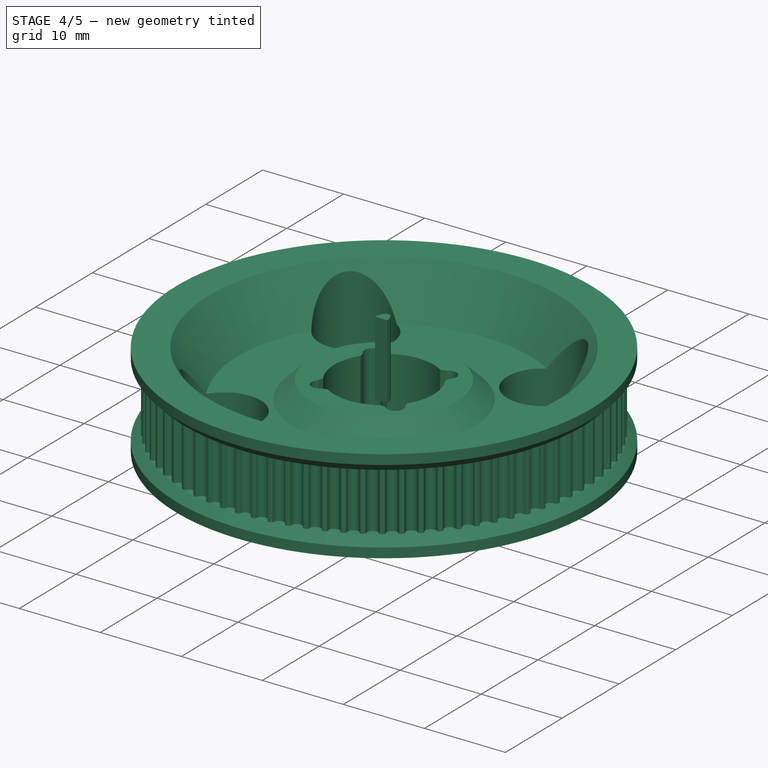
[diagram: stage 4 of 5 — iso view after this stage's code; geometry added in this stage tinted green]
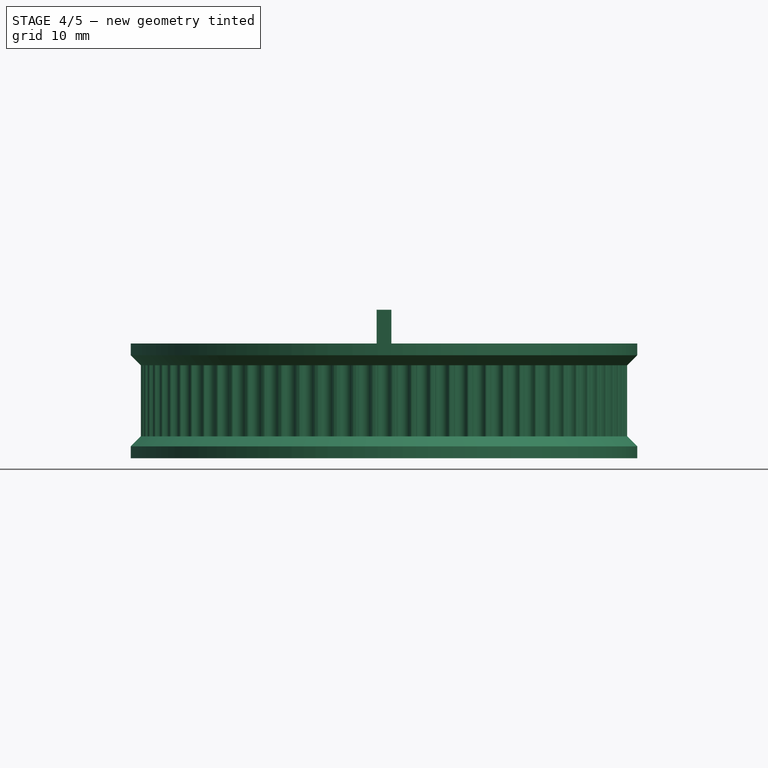
[diagram: stage 4 of 5 — front view after this stage's code; geometry added in this stage tinted green]
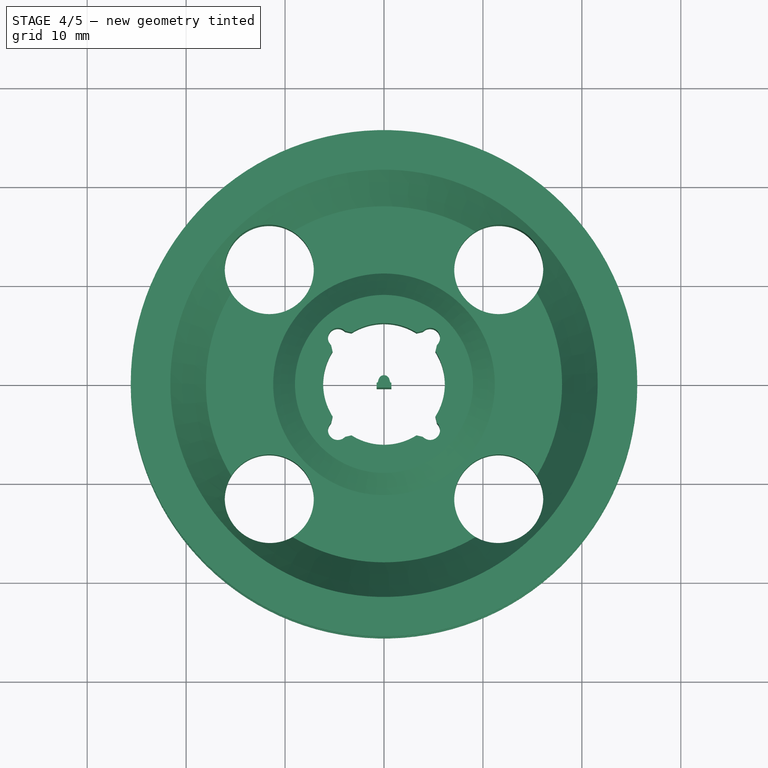
[diagram: stage 4 of 5 — top view after this stage's code; geometry added in this stage tinted green]
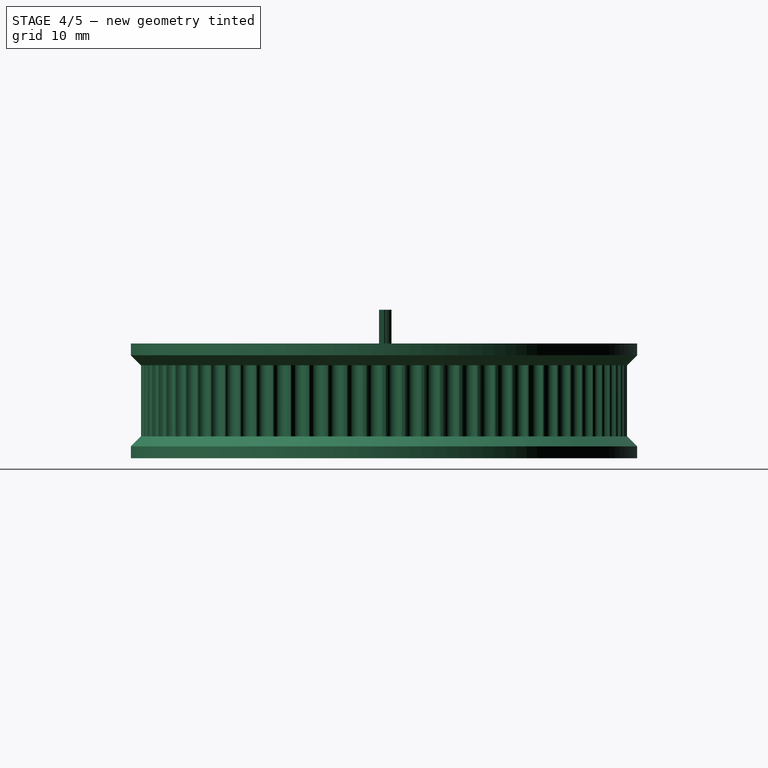
[diagram: stage 4 of 5 — right view after this stage's code; geometry added in this stage tinted green]
FEATURE [Part::Feature] Matrix_Deformation018
  Placement = pos=(24.5397,-0.988914,-0.4) rot=(0,0,1;1.53052rad)
  shape: bbox 1.332 x 1.744 x 9.2 mm, 25 faces (baked)
FEATURE [Part::Feature] polygon019
  shape: bbox 1.494 x 1.264 x 2e-07 mm, 1 faces, 0 solids (baked)
FEATURE [Part::FeaturePython] RefineLinearExtrude019  # WARN: FeaturePython — macro-defined, semantics opaque (R4)
  Base = -> polygon019
FEATURE [Part::Extrusion] LinearExtrude019
  Base = -> RefineLinearExtrude019
  Dir = (0,0,9.2)
  DirMode = 0
  FaceMakerClass = Part::FaceMakerBullseye
  FaceMakerMode = 3
  LengthFwd = 0
  LengthRev = 0
  Solid = false
  Symmetric = false
FEATURE [Part::Feature] Matrix_Deformation019
  Placement = pos=(24.5397,0.988914,-0.4) rot=(0,0,1;1.61107rad)
  shape: bbox 1.332 x 1.744 x 9.2 mm, 25 faces (baked)
FEATURE [Part::Feature] polygon020
  shape: bbox 1.494 x 1.264 x 2e-07 mm, 1 faces, 0 solids (baked)
FEATURE [Part::FeaturePython] RefineLinearExtrude020  # WARN: FeaturePython — macro-defined, semantics opaque (R4)
  Base = -> polygon020
FEATURE [Part::Extrusion] LinearExtrude020
  Base = -> RefineLinearExtrude020
  Dir = (0,0,9.2)
  DirMode = 0
  FaceMakerClass = Part::FaceMakerBullseye
  FaceMakerMode = 3
  LengthFwd = 0
  LengthRev = 0
  Solid = false
  Symmetric = false
FEATURE [Part::Feature] Matrix_Deformation020
  Placement = pos=(24.3805,2.96034,-0.4) rot=(0,0,1;1.69163rad)
  shape: bbox 1.459 x 1.834 x 9.2 mm, 25 faces (baked)
FEATURE [Part::Feature] polygon021
  shape: bbox 1.494 x 1.264 x 2e-07 mm, 1 faces, 0 solids (baked)
FEATURE [Part::FeaturePython] RefineLinearExtrude021  # WARN: FeaturePython — macro-defined, semantics opaque (R4)
  Base = -> polygon021
FEATURE [Part::Extrusion] LinearExtrude021
  Base = -> RefineLinearExtrude021
  Dir = (0,0,9.2)
  DirMode = 0
  FaceMakerClass = Part::FaceMakerBullseye
  FaceMakerMode = 3
  LengthFwd = 0
  LengthRev = 0
  Solid = false
  Symmetric = false
FEATURE [Part::Feature] Matrix_Deformation021
  Placement = pos=(24.0633,4.91256,-0.4) rot=(0,0,1;1.77218rad)
  shape: bbox 1.578 x 1.913 x 9.2 mm, 25 faces (baked)
FEATURE [Part::Feature] polygon022
  shape: bbox 1.494 x 1.264 x 2e-07 mm, 1 faces, 0 solids (baked)
FEATURE [Part::FeaturePython] RefineLinearExtrude022  # WARN: FeaturePython — macro-defined, semantics opaque (R4)
  Base = -> polygon022
FEATURE [Part::Extrusion] LinearExtrude022
  Base = -> RefineLinearExtrude022
  Dir = (0,0,9.2)
  DirMode = 0
  FaceMakerClass = Part::FaceMakerBullseye
  FaceMakerMode = 3
  LengthFwd = 0
  LengthRev = 0
  Solid = false
  Symmetric = false
FEATURE [Part::Feature] Matrix_Deformation022
  Placement = pos=(23.5899,6.8329,-0.4) rot=(0,0,1;1.85273rad)
  shape: bbox 1.686 x 1.979 x 9.2 mm, 25 faces (baked)
FEATURE [Part::Feature] polygon023
  shape: bbox 1.494 x 1.264 x 2e-07 mm, 1 faces, 0 solids (baked)
FEATURE [Part::FeaturePython] RefineLinearExtrude023  # WARN: FeaturePython — macro-defined, semantics opaque (R4)
  Base = -> polygon023
FEATURE [Part::Extrusion] LinearExtrude023
  Base = -> RefineLinearExtrude023
  Dir = (0,0,9.2)
  DirMode = 0
  FaceMakerClass = Part::FaceMakerBullseye
  FaceMakerMode = 3
  LengthFwd = 0
  LengthRev = 0
  Solid = false
  Symmetric = false
FEATURE [Part::Feature] Matrix_Deformation023
  Placement = pos=(22.9636,8.70896,-0.4) rot=(0,0,1;1.93329rad)
  shape: bbox 1.783 x 2.033 x 9.2 mm, 25 faces (baked)
FEATURE [Part::Feature] polygon024
  shape: bbox 1.494 x 1.264 x 2e-07 mm, 1 faces, 0 solids (baked)
FEATURE [Part::FeaturePython] RefineLinearExtrude024  # WARN: FeaturePython — macro-defined, semantics opaque (R4)
  Base = -> polygon024
FEATURE [Part::Extrusion] LinearExtrude024
  Base = -> RefineLinearExtrude024
  Dir = (0,0,9.2)
  DirMode = 0
  FaceMakerClass = Part::FaceMakerBullseye
  FaceMakerMode = 3
  LengthFwd = 0
  LengthRev = 0
  Solid = false
  Symmetric = false
FEATURE [Part::Feature] Matrix_Deformation024
  Placement = pos=(22.1884,10.5285,-0.4) rot=(0,0,1;2.01384rad)
  shape: bbox 1.869 x 2.073 x 9.2 mm, 25 faces (baked)
FEATURE [Part::Feature] polygon025
  shape: bbox 1.494 x 1.264 x 2e-07 mm, 1 faces, 0 solids (baked)
FEATURE [Part::FeaturePython] RefineLinearExtrude025  # WARN: FeaturePython — macro-defined, semantics opaque (R4)
  Base = -> polygon025
FEATURE [Part::Extrusion] LinearExtrude025
  Base = -> RefineLinearExtrude025
  Dir = (0,0,9.2)
  DirMode = 0
  FaceMakerClass = Part::FaceMakerBullseye
  FaceMakerMode = 3
  LengthFwd = 0
  LengthRev = 0
  Solid = false
  Symmetric = false
FEATURE [Part::Feature] Matrix_Deformation025
  Placement = pos=(21.2692,12.2798,-0.4) rot=(0,0,1;2.0944rad)
  shape: bbox 1.942 x 2.1 x 9.2 mm, 25 faces (baked)
FEATURE [Part::Feature] polygon026
  shape: bbox 1.494 x 1.264 x 2e-07 mm, 1 faces, 0 solids (baked)
FEATURE [Part::FeaturePython] RefineLinearExtrude026  # WARN: FeaturePython — macro-defined, semantics opaque (R4)
  Base = -> polygon026
FEATURE [Part::Extrusion] LinearExtrude026
  Base = -> RefineLinearExtrude026
  Dir = (0,0,9.2)
  DirMode = 0
  FaceMakerClass = Part::FaceMakerBullseye
  FaceMakerMode = 3
  LengthFwd = 0
  LengthRev = 0
  Solid = false
  Symmetric = false
FEATURE [Part::Feature] Matrix_Deformation026
  Placement = pos=(20.2122,13.9514,-0.4) rot=(0,0,1;2.17495rad)
  shape: bbox 2.003 x 2.113 x 9.2 mm, 25 faces (baked)
FEATURE [Part::Feature] polygon027
  shape: bbox 1.494 x 1.264 x 2e-07 mm, 1 faces, 0 solids (baked)
FEATURE [Part::FeaturePython] RefineLinearExtrude027  # WARN: FeaturePython — macro-defined, semantics opaque (R4)
  Base = -> polygon027
FEATURE [Part::Extrusion] LinearExtrude027
  Base = -> RefineLinearExtrude027
  Dir = (0,0,9.2)
  DirMode = 0
  FaceMakerClass = Part::FaceMakerBullseye
  FaceMakerMode = 3
  LengthFwd = 0
  LengthRev = 0
  Solid = false
  Symmetric = false
FEATURE [Part::Feature] Matrix_Deformation027
  Placement = pos=(19.024,15.5326,-0.4) rot=(0,0,1;2.2555rad)
  shape: bbox 2.051 x 2.112 x 9.2 mm, 25 faces (baked)
FEATURE [Part::Feature] polygon028
  shape: bbox 1.494 x 1.264 x 2e-07 mm, 1 faces, 0 solids (baked)
FEATURE [Part::FeaturePython] RefineLinearExtrude028  # WARN: FeaturePython — macro-defined, semantics opaque (R4)
  Base = -> polygon028
FEATURE [Part::Extrusion] LinearExtrude028
  Base = -> RefineLinearExtrude028
  Dir = (0,0,9.2)
  DirMode = 0
  FaceMakerClass = Part::FaceMakerBullseye
  FaceMakerMode = 3
  LengthFwd = 0
  LengthRev = 0
  Solid = false
  Symmetric = false
FEATURE [Part::Feature] Matrix_Deformation028
  Placement = pos=(17.7124,17.013,-0.4) rot=(0,0,1;2.33606rad)
  shape: bbox 2.086 x 2.098 x 9.2 mm, 25 faces (baked)
FEATURE [Part::Feature] polygon029
  shape: bbox 1.494 x 1.264 x 2e-07 mm, 1 faces, 0 solids (baked)
FEATURE [Part::FeaturePython] RefineLinearExtrude029  # WARN: FeaturePython — macro-defined, semantics opaque (R4)
  Base = -> polygon029
FEATURE [Part::Extrusion] LinearExtrude029
  Base = -> RefineLinearExtrude029
  Dir = (0,0,9.2)
  DirMode = 0
  FaceMakerClass = Part::FaceMakerBullseye
  FaceMakerMode = 3
  LengthFwd = 0
  LengthRev = 0
  Solid = false
  Symmetric = false
FEATURE [Part::Feature] Matrix_Deformation029
  Placement = pos=(16.286,18.3831,-0.4) rot=(0,0,1;2.41661rad)
  shape: bbox 2.107 x 2.07 x 9.2 mm, 25 faces (baked)
FEATURE [Part::Feature] polygon030
  shape: bbox 1.494 x 1.264 x 2e-07 mm, 1 faces, 0 solids (baked)
FEATURE [Part::FeaturePython] RefineLinearExtrude030  # WARN: FeaturePython — macro-defined, semantics opaque (R4)
  Base = -> polygon030
FEATURE [Part::Extrusion] LinearExtrude030
  Base = -> RefineLinearExtrude030
  Dir = (0,0,9.2)
  DirMode = 0
  FaceMakerClass = Part::FaceMakerBullseye
  FaceMakerMode = 3
  LengthFwd = 0
  LengthRev = 0
  Solid = false
  Symmetric = false
FEATURE [Part::Feature] Matrix_Deformation030
  Placement = pos=(14.754,19.634,-0.4) rot=(0,0,1;2.49716rad)
  shape: bbox 2.114 x 2.029 x 9.2 mm, 25 faces (baked)
FEATURE [Part::Feature] polygon031
  shape: bbox 1.494 x 1.264 x 2e-07 mm, 1 faces, 0 solids (baked)
FEATURE [Part::FeaturePython] RefineLinearExtrude031  # WARN: FeaturePython — macro-defined, semantics opaque (R4)
  Base = -> polygon031
FEATURE [Part::Extrusion] LinearExtrude031
  Base = -> RefineLinearExtrude031
  Dir = (0,0,9.2)
  DirMode = 0
  FaceMakerClass = Part::FaceMakerBullseye
  FaceMakerMode = 3
  LengthFwd = 0
  LengthRev = 0
  Solid = false
  Symmetric = false
FEATURE [Part::Feature] Matrix_Deformation031
  Placement = pos=(13.1263,20.7575,-0.4) rot=(0,0,1;2.57772rad)
  shape: bbox 2.108 x 1.974 x 9.2 mm, 25 faces (baked)
FEATURE [Part::Feature] polygon032
  shape: bbox 1.494 x 1.264 x 2e-07 mm, 1 faces, 0 solids (baked)
FEATURE [Part::FeaturePython] RefineLinearExtrude032  # WARN: FeaturePython — macro-defined, semantics opaque (R4)
  Base = -> polygon032
FEATURE [Part::Extrusion] LinearExtrude032
  Base = -> RefineLinearExtrude032
  Dir = (0,0,9.2)
  DirMode = 0
  FaceMakerClass = Part::FaceMakerBullseye
  FaceMakerMode = 3
  LengthFwd = 0
  LengthRev = 0
  Solid = false
  Symmetric = false
FEATURE [Part::Feature] Matrix_Deformation032
  Placement = pos=(11.4134,21.7464,-0.4) rot=(0,0,1;2.65827rad)
  shape: bbox 2.088 x 1.907 x 9.2 mm, 25 faces (baked)
FEATURE [Part::Feature] polygon033
  shape: bbox 1.494 x 1.264 x 2e-07 mm, 1 faces, 0 solids (baked)
FEATURE [Part::FeaturePython] RefineLinearExtrude033  # WARN: FeaturePython — macro-defined, semantics opaque (R4)
  Base = -> polygon033
FEATURE [Part::Extrusion] LinearExtrude033
  Base = -> RefineLinearExtrude033
  Dir = (0,0,9.2)
  DirMode = 0
  FaceMakerClass = Part::FaceMakerBullseye
  FaceMakerMode = 3
  LengthFwd = 0
  LengthRev = 0
  Solid = false
  Symmetric = false
FEATURE [Part::Feature] Matrix_Deformation033
  Placement = pos=(9.62656,22.5943,-0.4) rot=(0,0,1;2.73882rad)
  shape: bbox 2.054 x 1.827 x 9.2 mm, 25 faces (baked)
FEATURE [Part::Feature] polygon034
  shape: bbox 1.494 x 1.264 x 2e-07 mm, 1 faces, 0 solids (baked)
FEATURE [Part::FeaturePython] RefineLinearExtrude034  # WARN: FeaturePython — macro-defined, semantics opaque (R4)
  Base = -> polygon034
FEATURE [Part::Extrusion] LinearExtrude034
  Base = -> RefineLinearExtrude034
  Dir = (0,0,9.2)
  DirMode = 0
  FaceMakerClass = Part::FaceMakerBullseye
  FaceMakerMode = 3
  LengthFwd = 0
  LengthRev = 0
  Solid = false
  Symmetric = false
FEATURE [Part::Feature] Matrix_Deformation034
  Placement = pos=(7.77724,23.2957,-0.4) rot=(0,0,1;2.81938rad)
  shape: bbox 2.008 x 1.736 x 9.2 mm, 25 faces (baked)
FEATURE [Part::Feature] polygon035
  shape: bbox 1.494 x 1.264 x 2e-07 mm, 1 faces, 0 solids (baked)
FEATURE [Part::FeaturePython] RefineLinearExtrude035  # WARN: FeaturePython — macro-defined, semantics opaque (R4)
  Base = -> polygon035
FEATURE [Part::Extrusion] LinearExtrude035
  Base = -> RefineLinearExtrude035
  Dir = (0,0,9.2)
  DirMode = 0
  FaceMakerClass = Part::FaceMakerBullseye
  FaceMakerMode = 3
  LengthFwd = 0
  LengthRev = 0
  Solid = false
  Symmetric = false
FEATURE [Part::Feature] Matrix_Deformation035
  Placement = pos=(5.8775,23.8459,-0.4) rot=(0,0,1;2.89993rad)
  shape: bbox 1.948 x 1.633 x 9.2 mm, 25 faces (baked)
FEATURE [Part::Feature] polygon036
  shape: bbox 1.494 x 1.264 x 2e-07 mm, 1 faces, 0 solids (baked)
FEATURE [Part::FeaturePython] RefineLinearExtrude036  # WARN: FeaturePython — macro-defined, semantics opaque (R4)
  Base = -> polygon036
FEATURE [Part::Extrusion] LinearExtrude036
  Base = -> RefineLinearExtrude036
  Dir = (0,0,9.2)
  DirMode = 0
  FaceMakerClass = Part::FaceMakerBullseye
  FaceMakerMode = 3
  LengthFwd = 0
  LengthRev = 0
  Solid = false
  Symmetric = false
FEATURE [Part::Feature] Matrix_Deformation036
  Placement = pos=(3.93963,24.2416,-0.4) rot=(0,0,1;2.98049rad)
  shape: bbox 1.875 x 1.52 x 9.2 mm, 25 faces (baked)
FEATURE [Part::Feature] polygon037
  shape: bbox 1.494 x 1.264 x 2e-07 mm, 1 faces, 0 solids (baked)
FEATURE [Part::FeaturePython] RefineLinearExtrude037  # WARN: FeaturePython — macro-defined, semantics opaque (R4)
  Base = -> polygon037
FEATURE [Part::Extrusion] LinearExtrude037
  Base = -> RefineLinearExtrude037
  Dir = (0,0,9.2)
  DirMode = 0
  FaceMakerClass = Part::FaceMakerBullseye
  FaceMakerMode = 3
  LengthFwd = 0
  LengthRev = 0
  Solid = false
  Symmetric = false
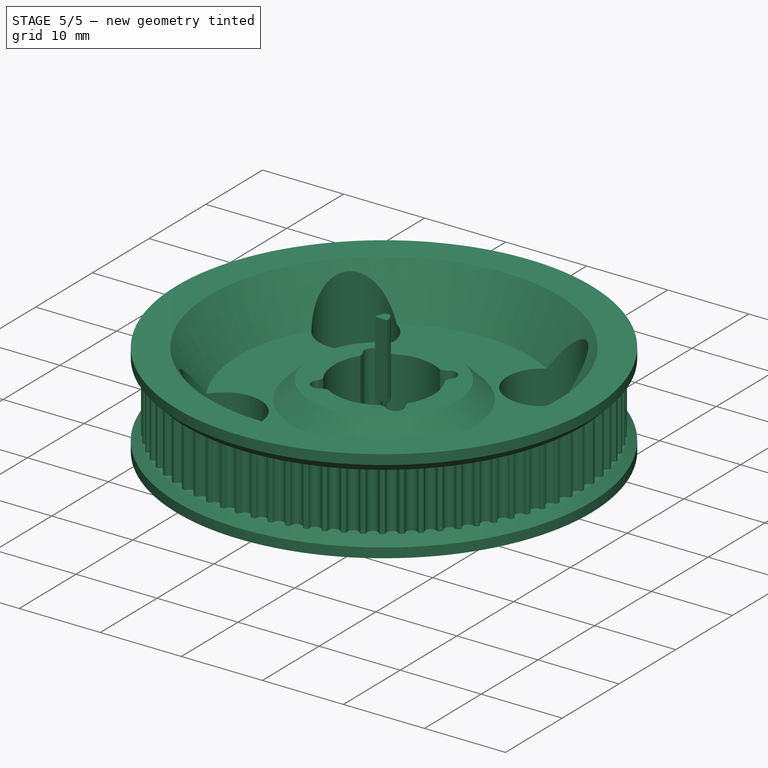
[diagram: stage 5 of 5 — iso view after this stage's code; geometry added in this stage tinted green]
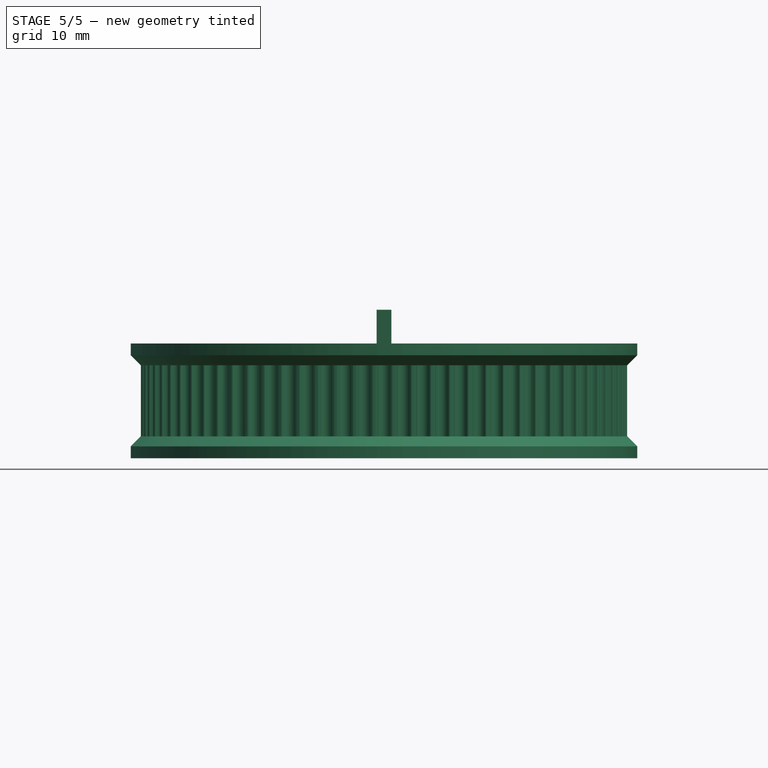
[diagram: stage 5 of 5 — front view after this stage's code; geometry added in this stage tinted green]
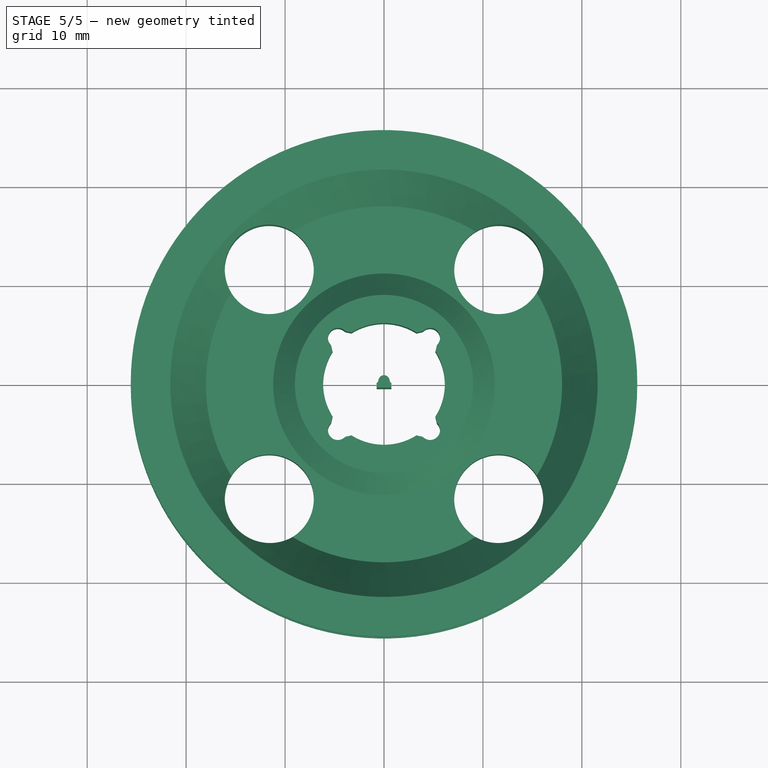
[diagram: stage 5 of 5 — top view after this stage's code; geometry added in this stage tinted green]
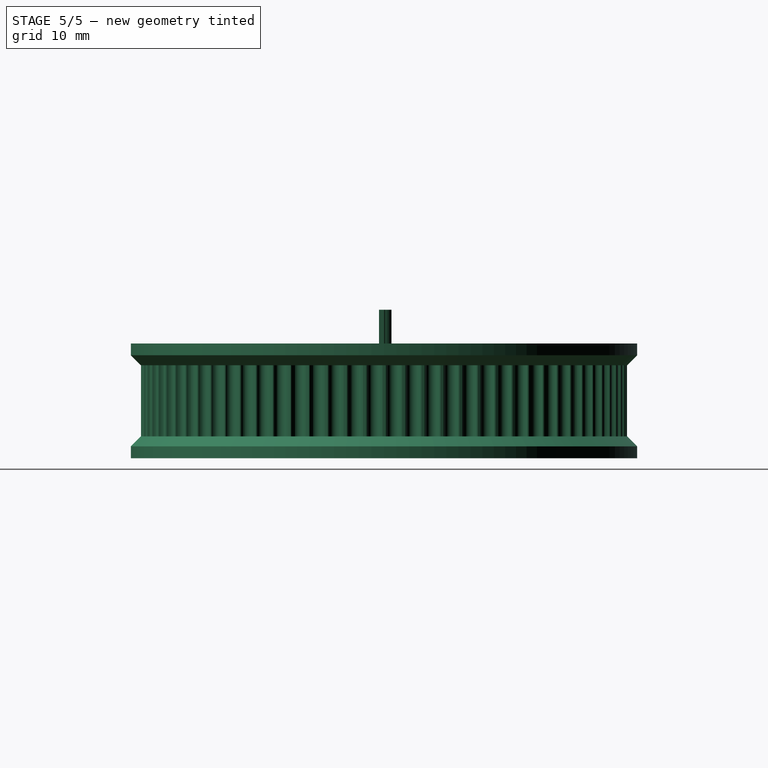
[diagram: stage 5 of 5 — right view after this stage's code; geometry added in this stage tinted green]
FEATURE [Part::Feature] polygon
  shape: bbox 1.494 x 1.264 x 2e-07 mm, 1 faces, 0 solids (baked)
FEATURE [Part::FeaturePython] RefineLinearExtrude  # WARN: FeaturePython — macro-defined, semantics opaque (R4)
  Base = -> polygon
FEATURE [Part::Extrusion] LinearExtrude
  Base = -> RefineLinearExtrude
  Dir = (0,0,9.2)
  DirMode = 0
  FaceMakerClass = Part::FaceMakerBullseye
  FaceMakerMode = 3
  LengthFwd = 0
  LengthRev = 0
  Solid = false
  Symmetric = false
FEATURE [Part::Feature] Matrix_Deformation
  Placement = pos=(1.97623,-24.48,-0.4) rot=(0,0,1;0.080554rad)
  shape: bbox 1.791 x 1.397 x 9.2 mm, 25 faces (baked)
FEATURE [Part::Feature] polygon001
  shape: bbox 1.494 x 1.264 x 2e-07 mm, 1 faces, 0 solids (baked)
FEATURE [Part::FeaturePython] RefineLinearExtrude001  # WARN: FeaturePython — macro-defined, semantics opaque (R4)
  Base = -> polygon001
FEATURE [Part::Extrusion] LinearExtrude001
  Base = -> RefineLinearExtrude001
  Dir = (0,0,9.2)
  DirMode = 0
  FaceMakerClass = Part::FaceMakerBullseye
  FaceMakerMode = 3
  LengthFwd = 0
  LengthRev = 0
  Solid = false
  Symmetric = false
FEATURE [Part::Feature] Matrix_Deformation001
  Placement = pos=(3.93963,-24.2416,-0.4) rot=(0,0,1;0.161107rad)
  shape: bbox 1.875 x 1.52 x 9.2 mm, 25 faces (baked)
FEATURE [Part::Feature] polygon002
  shape: bbox 1.494 x 1.264 x 2e-07 mm, 1 faces, 0 solids (baked)
FEATURE [Part::FeaturePython] RefineLinearExtrude002  # WARN: FeaturePython — macro-defined, semantics opaque (R4)
  Base = -> polygon002
FEATURE [Part::Extrusion] LinearExtrude002
  Base = -> RefineLinearExtrude002
  Dir = (0,0,9.2)
  DirMode = 0
  FaceMakerClass = Part::FaceMakerBullseye
  FaceMakerMode = 3
  LengthFwd = 0
  LengthRev = 0
  Solid = false
  Symmetric = false
FEATURE [Part::Feature] Matrix_Deformation002
  Placement = pos=(5.8775,-23.8459,-0.4) rot=(0,0,1;0.241661rad)
  shape: bbox 1.948 x 1.633 x 9.2 mm, 25 faces (baked)
FEATURE [Part::Feature] polygon003
  shape: bbox 1.494 x 1.264 x 2e-07 mm, 1 faces, 0 solids (baked)
FEATURE [Part::FeaturePython] RefineLinearExtrude003  # WARN: FeaturePython — macro-defined, semantics opaque (R4)
  Base = -> polygon003
FEATURE [Part::Extrusion] LinearExtrude003
  Base = -> RefineLinearExtrude003
  Dir = (0,0,9.2)
  DirMode = 0
  FaceMakerClass = Part::FaceMakerBullseye
  FaceMakerMode = 3
  LengthFwd = 0
  LengthRev = 0
  Solid = false
  Symmetric = false
FEATURE [Part::Feature] Matrix_Deformation003
  Placement = pos=(7.77724,-23.2957,-0.4) rot=(0,0,1;0.322215rad)
  shape: bbox 2.008 x 1.736 x 9.2 mm, 25 faces (baked)
FEATURE [Part::Feature] polygon004
  shape: bbox 1.494 x 1.264 x 2e-07 mm, 1 faces, 0 solids (baked)
FEATURE [Part::FeaturePython] RefineLinearExtrude004  # WARN: FeaturePython — macro-defined, semantics opaque (R4)
  Base = -> polygon004
FEATURE [Part::Extrusion] LinearExtrude004
  Base = -> RefineLinearExtrude004
  Dir = (0,0,9.2)
  DirMode = 0
  FaceMakerClass = Part::FaceMakerBullseye
  FaceMakerMode = 3
  LengthFwd = 0
  LengthRev = 0
  Solid = false
  Symmetric = false
FEATURE [Part::Feature] Matrix_Deformation004
  Placement = pos=(9.62656,-22.5943,-0.4) rot=(0,0,1;0.402769rad)
  shape: bbox 2.054 x 1.827 x 9.2 mm, 25 faces (baked)
FEATURE [Part::Feature] polygon005
  shape: bbox 1.494 x 1.264 x 2e-07 mm, 1 faces, 0 solids (baked)
FEATURE [Part::FeaturePython] RefineLinearExtrude005  # WARN: FeaturePython — macro-defined, semantics opaque (R4)
  Base = -> polygon005
FEATURE [Part::Extrusion] LinearExtrude005
  Base = -> RefineLinearExtrude005
  Dir = (0,0,9.2)
  DirMode = 0
  FaceMakerClass = Part::FaceMakerBullseye
  FaceMakerMode = 3
  LengthFwd = 0
  LengthRev = 0
  Solid = false
  Symmetric = false
FEATURE [Part::Feature] Matrix_Deformation005
  Placement = pos=(11.4134,-21.7464,-0.4) rot=(0,0,1;0.483322rad)
  shape: bbox 2.088 x 1.907 x 9.2 mm, 25 faces (baked)
FEATURE [Part::Feature] polygon006
  shape: bbox 1.494 x 1.264 x 2e-07 mm, 1 faces, 0 solids (baked)
FEATURE [Part::FeaturePython] RefineLinearExtrude006  # WARN: FeaturePython — macro-defined, semantics opaque (R4)
  Base = -> polygon006
FEATURE [Part::Extrusion] LinearExtrude006
  Base = -> RefineLinearExtrude006
  Dir = (0,0,9.2)
  DirMode = 0
  FaceMakerClass = Part::FaceMakerBullseye
  FaceMakerMode = 3
  LengthFwd = 0
  LengthRev = 0
  Solid = false
  Symmetric = false
FEATURE [Part::Feature] Matrix_Deformation006
  Placement = pos=(13.1263,-20.7575,-0.4) rot=(0,0,1;0.563876rad)
  shape: bbox 2.108 x 1.974 x 9.2 mm, 25 faces (baked)
FEATURE [Part::Feature] polygon007
  shape: bbox 1.494 x 1.264 x 2e-07 mm, 1 faces, 0 solids (baked)
FEATURE [Part::FeaturePython] RefineLinearExtrude007  # WARN: FeaturePython — macro-defined, semantics opaque (R4)
  Base = -> polygon007
FEATURE [Part::Extrusion] LinearExtrude007
  Base = -> RefineLinearExtrude007
  Dir = (0,0,9.2)
  DirMode = 0
  FaceMakerClass = Part::FaceMakerBullseye
  FaceMakerMode = 3
  LengthFwd = 0
  LengthRev = 0
  Solid = false
  Symmetric = false
FEATURE [Part::Feature] Matrix_Deformation007
  Placement = pos=(14.754,-19.634,-0.4) rot=(0,0,1;0.644429rad)
  shape: bbox 2.114 x 2.029 x 9.2 mm, 25 faces (baked)
FEATURE [Part::Feature] polygon008
  shape: bbox 1.494 x 1.264 x 2e-07 mm, 1 faces, 0 solids (baked)
FEATURE [Part::FeaturePython] RefineLinearExtrude008  # WARN: FeaturePython — macro-defined, semantics opaque (R4)
  Base = -> polygon008
FEATURE [Part::Extrusion] LinearExtrude008
  Base = -> RefineLinearExtrude008
  Dir = (0,0,9.2)
  DirMode = 0
  FaceMakerClass = Part::FaceMakerBullseye
  FaceMakerMode = 3
  LengthFwd = 0
  LengthRev = 0
  Solid = false
  Symmetric = false
FEATURE [Part::Feature] Matrix_Deformation008
  Placement = pos=(16.286,-18.3831,-0.4) rot=(0,0,1;0.724983rad)
  shape: bbox 2.107 x 2.07 x 9.2 mm, 25 faces (baked)
FEATURE [Part::Feature] polygon009
  shape: bbox 1.494 x 1.264 x 2e-07 mm, 1 faces, 0 solids (baked)
FEATURE [Part::FeaturePython] RefineLinearExtrude009  # WARN: FeaturePython — macro-defined, semantics opaque (R4)
  Base = -> polygon009
FEATURE [Part::Extrusion] LinearExtrude009
  Base = -> RefineLinearExtrude009
  Dir = (0,0,9.2)
  DirMode = 0
  FaceMakerClass = Part::FaceMakerBullseye
  FaceMakerMode = 3
  LengthFwd = 0
  LengthRev = 0
  Solid = false
  Symmetric = false
FEATURE [Part::Feature] Matrix_Deformation009
  Placement = pos=(17.7124,-17.013,-0.4) rot=(0,0,1;0.805537rad)
  shape: bbox 2.086 x 2.098 x 9.2 mm, 25 faces (baked)
FEATURE [Part::Feature] polygon010
  shape: bbox 1.494 x 1.264 x 2e-07 mm, 1 faces, 0 solids (baked)
FEATURE [Part::FeaturePython] RefineLinearExtrude010  # WARN: FeaturePython — macro-defined, semantics opaque (R4)
  Base = -> polygon010
FEATURE [Part::Extrusion] LinearExtrude010
  Base = -> RefineLinearExtrude010
  Dir = (0,0,9.2)
  DirMode = 0
  FaceMakerClass = Part::FaceMakerBullseye
  FaceMakerMode = 3
  LengthFwd = 0
  LengthRev = 0
  Solid = false
  Symmetric = false
FEATURE [Part::Feature] Matrix_Deformation010
  Placement = pos=(19.024,-15.5326,-0.4) rot=(0,0,1;0.886091rad)
  shape: bbox 2.051 x 2.112 x 9.2 mm, 25 faces (baked)
FEATURE [Part::Feature] polygon011
  shape: bbox 1.494 x 1.264 x 2e-07 mm, 1 faces, 0 solids (baked)
FEATURE [Part::FeaturePython] RefineLinearExtrude011  # WARN: FeaturePython — macro-defined, semantics opaque (R4)
  Base = -> polygon011
FEATURE [Part::Extrusion] LinearExtrude011
  Base = -> RefineLinearExtrude011
  Dir = (0,0,9.2)
  DirMode = 0
  FaceMakerClass = Part::FaceMakerBullseye
  FaceMakerMode = 3
  LengthFwd = 0
  LengthRev = 0
  Solid = false
  Symmetric = false
FEATURE [Part::Feature] Matrix_Deformation011
  Placement = pos=(20.2122,-13.9514,-0.4) rot=(0,0,1;0.966644rad)
  shape: bbox 2.003 x 2.113 x 9.2 mm, 25 faces (baked)
FEATURE [Part::Feature] polygon012
  shape: bbox 1.494 x 1.264 x 2e-07 mm, 1 faces, 0 solids (baked)
FEATURE [Part::FeaturePython] RefineLinearExtrude012  # WARN: FeaturePython — macro-defined, semantics opaque (R4)
  Base = -> polygon012
FEATURE [Part::Extrusion] LinearExtrude012
  Base = -> RefineLinearExtrude012
  Dir = (0,0,9.2)
  DirMode = 0
  FaceMakerClass = Part::FaceMakerBullseye
  FaceMakerMode = 3
  LengthFwd = 0
  LengthRev = 0
  Solid = false
  Symmetric = false
FEATURE [Part::Feature] Matrix_Deformation012
  Placement = pos=(21.2692,-12.2798,-0.4) rot=(0,0,1;1.0472rad)
  shape: bbox 1.942 x 2.1 x 9.2 mm, 25 faces (baked)
FEATURE [Part::Feature] polygon013
  shape: bbox 1.494 x 1.264 x 2e-07 mm, 1 faces, 0 solids (baked)
FEATURE [Part::FeaturePython] RefineLinearExtrude013  # WARN: FeaturePython — macro-defined, semantics opaque (R4)
  Base = -> polygon013
FEATURE [Part::Extrusion] LinearExtrude013
  Base = -> RefineLinearExtrude013
  Dir = (0,0,9.2)
  DirMode = 0
  FaceMakerClass = Part::FaceMakerBullseye
  FaceMakerMode = 3
  LengthFwd = 0
  LengthRev = 0
  Solid = false
  Symmetric = false
FEATURE [Part::Feature] Matrix_Deformation013
  Placement = pos=(22.1884,-10.5285,-0.4) rot=(0,0,1;1.12775rad)
  shape: bbox 1.869 x 2.073 x 9.2 mm, 25 faces (baked)
FEATURE [Part::Feature] polygon014
  shape: bbox 1.494 x 1.264 x 2e-07 mm, 1 faces, 0 solids (baked)
FEATURE [Part::FeaturePython] RefineLinearExtrude014  # WARN: FeaturePython — macro-defined, semantics opaque (R4)
  Base = -> polygon014
FEATURE [Part::Extrusion] LinearExtrude014
  Base = -> RefineLinearExtrude014
  Dir = (0,0,9.2)
  DirMode = 0
  FaceMakerClass = Part::FaceMakerBullseye
  FaceMakerMode = 3
  LengthFwd = 0
  LengthRev = 0
  Solid = false
  Symmetric = false
FEATURE [Part::Feature] Matrix_Deformation014
  Placement = pos=(22.9636,-8.70896,-0.4) rot=(0,0,1;1.2083rad)
  shape: bbox 1.783 x 2.033 x 9.2 mm, 25 faces (baked)
FEATURE [Part::Feature] polygon015
  shape: bbox 1.494 x 1.264 x 2e-07 mm, 1 faces, 0 solids (baked)
FEATURE [Part::FeaturePython] RefineLinearExtrude015  # WARN: FeaturePython — macro-defined, semantics opaque (R4)
  Base = -> polygon015
FEATURE [Part::Extrusion] LinearExtrude015
  Base = -> RefineLinearExtrude015
  Dir = (0,0,9.2)
  DirMode = 0
  FaceMakerClass = Part::FaceMakerBullseye
  FaceMakerMode = 3
  LengthFwd = 0
  LengthRev = 0
  Solid = false
  Symmetric = false
FEATURE [Part::Feature] Matrix_Deformation015
  Placement = pos=(23.5899,-6.8329,-0.4) rot=(0,0,1;1.28886rad)
  shape: bbox 1.686 x 1.979 x 9.2 mm, 25 faces (baked)
FEATURE [Part::Feature] polygon016
  shape: bbox 1.494 x 1.264 x 2e-07 mm, 1 faces, 0 solids (baked)
FEATURE [Part::FeaturePython] RefineLinearExtrude016  # WARN: FeaturePython — macro-defined, semantics opaque (R4)
  Base = -> polygon016
FEATURE [Part::Extrusion] LinearExtrude016
  Base = -> RefineLinearExtrude016
  Dir = (0,0,9.2)
  DirMode = 0
  FaceMakerClass = Part::FaceMakerBullseye
  FaceMakerMode = 3
  LengthFwd = 0
  LengthRev = 0
  Solid = false
  Symmetric = false
FEATURE [Part::Feature] Matrix_Deformation016
  Placement = pos=(24.0633,-4.91256,-0.4) rot=(0,0,1;1.36941rad)
  shape: bbox 1.578 x 1.913 x 9.2 mm, 25 faces (baked)
FEATURE [Part::Feature] polygon017
  shape: bbox 1.494 x 1.264 x 2e-07 mm, 1 faces, 0 solids (baked)
FEATURE [Part::FeaturePython] RefineLinearExtrude017  # WARN: FeaturePython — macro-defined, semantics opaque (R4)
  Base = -> polygon017
FEATURE [Part::Extrusion] LinearExtrude017
  Base = -> RefineLinearExtrude017
  Dir = (0,0,9.2)
  DirMode = 0
  FaceMakerClass = Part::FaceMakerBullseye
  FaceMakerMode = 3
  LengthFwd = 0
  LengthRev = 0
  Solid = false
  Symmetric = false
FEATURE [Part::Feature] Matrix_Deformation017
  Placement = pos=(24.3805,-2.96034,-0.4) rot=(0,0,1;1.44997rad)
  shape: bbox 1.459 x 1.834 x 9.2 mm, 25 faces (baked)
FEATURE [Part::Feature] polygon018
  shape: bbox 1.494 x 1.264 x 2e-07 mm, 1 faces, 0 solids (baked)
FEATURE [Part::FeaturePython] RefineLinearExtrude018  # WARN: FeaturePython — macro-defined, semantics opaque (R4)
  Base = -> polygon018
FEATURE [Part::Extrusion] LinearExtrude018
  Base = -> RefineLinearExtrude018
  Dir = (0,0,9.2)
  DirMode = 0
  FaceMakerClass = Part::FaceMakerBullseye
  FaceMakerMode = 3
  LengthFwd = 0
  LengthRev = 0
  Solid = false
  Symmetric = false
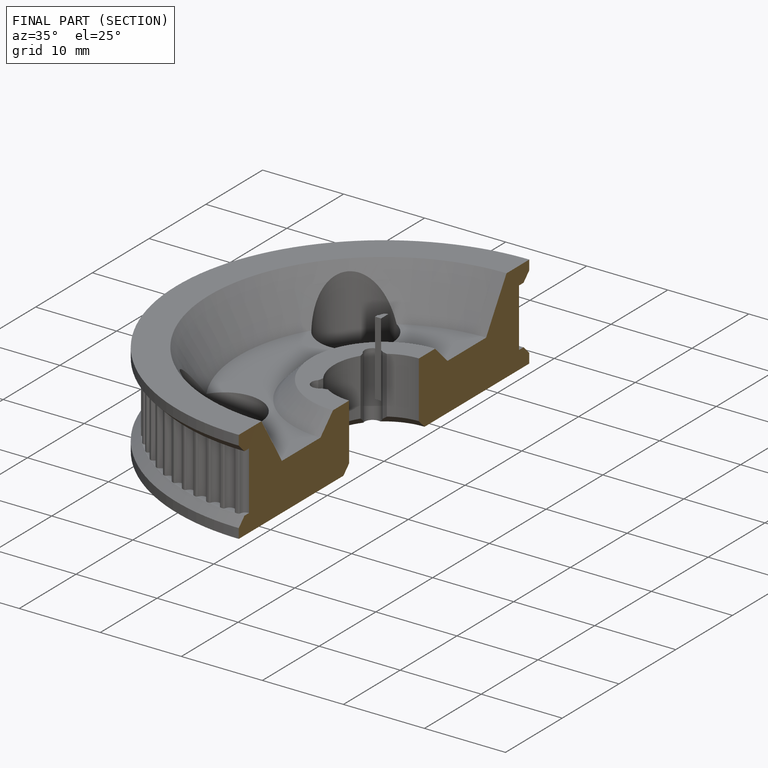
[diagram: finished part — half-section view (interior)]
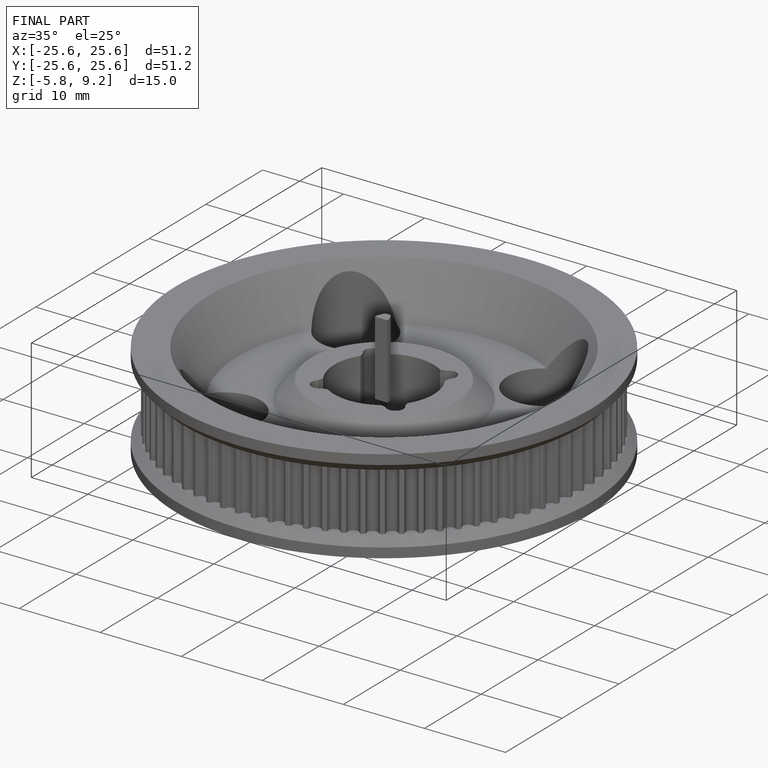
[diagram: finished part — iso view with bounding-box wireframe]
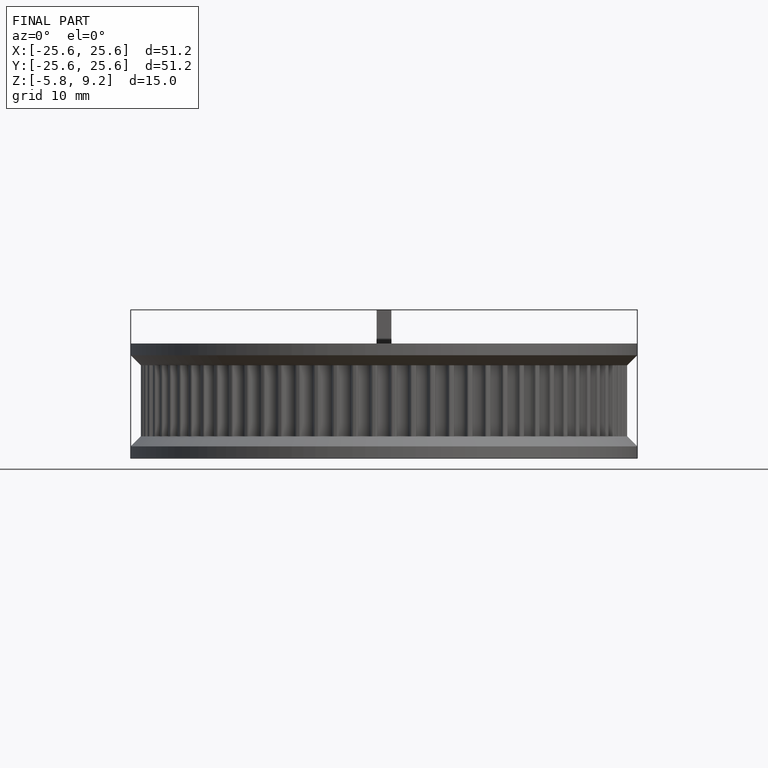
[diagram: finished part — front view with bounding-box wireframe]
